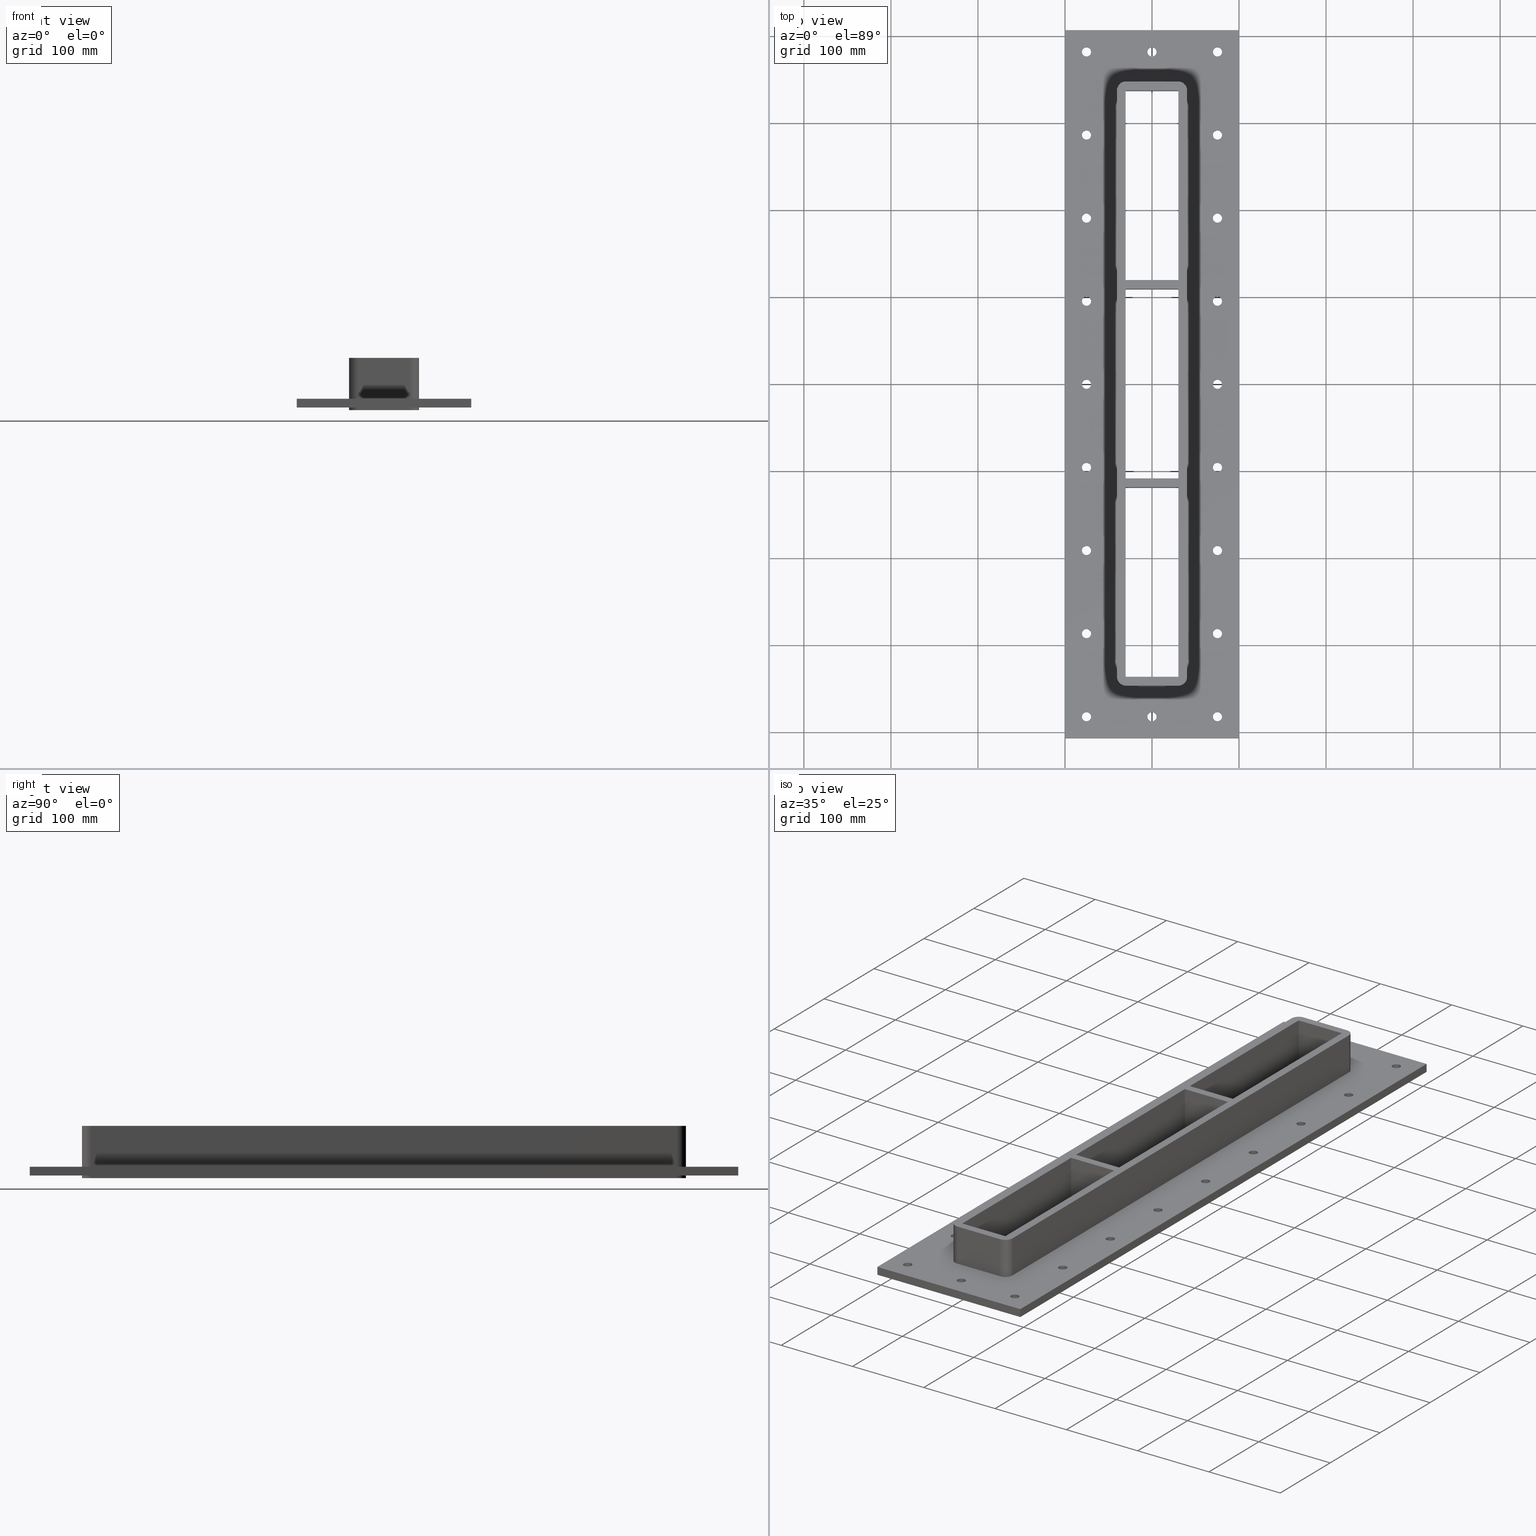
[diagram: canonical four-view strip — front | top / right | iso, engineering-drawing reading convention]
A machine part, canonical four-view strip (front | top / right | iso — engineering-drawing reading convention). The complete STEP part file that produces these views, byte-faithful:
ISO-10303-21;
HEADER;
/****************************************************************
 * Generated by software with PDElib inside                    *
 * PDElib Version v51a, created Wed 11/30/2011                  *
 * ITI Transcendata (http://www.transcendata.com/)              *
 ****************************************************************/
FILE_DESCRIPTION((''),'2;1');
FILE_NAME('C:\\Users\\se-milkar\\Desktop\\SFHM GENERATOR\\File dump\\SFHM5+5+5X1.stp','2017-01-17T17:24:56',(''),(''),'Autodesk Inventor 2013','Autodesk Inventor 2013','');
FILE_SCHEMA(('AUTOMOTIVE_DESIGN { 1 0 10303 214 1 1 1 1 }'));
ENDSEC;
DATA;
#5=APPLICATION_CONTEXT('automotive design');
#6=APPLICATION_PROTOCOL_DEFINITION('International Standard','automotive_design',2001,#5);
#7=PRODUCT_CONTEXT('',#5,'mechanical');
#8=PRODUCT('RTD-FRAME GENERATOR SF-LABB','RTD-FRAME GENERATOR SF-LABB',$,(#7));
#9=PRODUCT_RELATED_PRODUCT_CATEGORY('part',$,(#8));
#10=PRODUCT_DEFINITION_FORMATION('',$,#8);
#11=PRODUCT_DEFINITION_CONTEXT('part definition',#5,'design');
#12=PRODUCT_DEFINITION('',$,#10,#11);
#18=(NAMED_UNIT(*)PLANE_ANGLE_UNIT()SI_UNIT($,.RADIAN.));
#19=DIMENSIONAL_EXPONENTS(0.0,0.0,0.0,0.0,0.0,0.0,0.0);
#20=PLANE_ANGLE_MEASURE_WITH_UNIT(PLANE_ANGLE_MEASURE(0.0174532925),#18);
#24=(CONVERSION_BASED_UNIT('DEGREE',#20)NAMED_UNIT(#19)PLANE_ANGLE_UNIT());
#28=(NAMED_UNIT(*)SI_UNIT($,.STERADIAN.)SOLID_ANGLE_UNIT());
#32=(LENGTH_UNIT()NAMED_UNIT(*)SI_UNIT(.MILLI.,.METRE.));
#34=UNCERTAINTY_MEASURE_WITH_UNIT(LENGTH_MEASURE(0.01),#32,'DISTANCE_ACCURACY_VALUE','');
#36=(GEOMETRIC_REPRESENTATION_CONTEXT(3)GLOBAL_UNCERTAINTY_ASSIGNED_CONTEXT((#34))GLOBAL_UNIT_ASSIGNED_CONTEXT((#24,#28,#32))REPRESENTATION_CONTEXT('None','None'));
#37=AXIS2_PLACEMENT_3D('',#38,#39,#40);
#38=CARTESIAN_POINT('',(0.0,0.0,0.0));
#39=DIRECTION('',(0.0,0.0,1.0));
#40=DIRECTION('',(1.0,0.0,0.0));
#41=SHAPE_REPRESENTATION('',(#37),#36);
#42=PRODUCT_DEFINITION_SHAPE('','',#12);
#43=SHAPE_DEFINITION_REPRESENTATION(#42,#41);
#49=(NAMED_UNIT(*)PLANE_ANGLE_UNIT()SI_UNIT($,.RADIAN.));
#50=DIMENSIONAL_EXPONENTS(0.0,0.0,0.0,0.0,0.0,0.0,0.0);
#51=PLANE_ANGLE_MEASURE_WITH_UNIT(PLANE_ANGLE_MEASURE(0.0174532925),#49);
#55=(CONVERSION_BASED_UNIT('DEGREE',#51)NAMED_UNIT(#50)PLANE_ANGLE_UNIT());
#59=(NAMED_UNIT(*)SI_UNIT($,.STERADIAN.)SOLID_ANGLE_UNIT());
#63=(LENGTH_UNIT()NAMED_UNIT(*)SI_UNIT(.MILLI.,.METRE.));
#65=UNCERTAINTY_MEASURE_WITH_UNIT(LENGTH_MEASURE(0.000001),#63,'DISTANCE_ACCURACY_VALUE','');
#67=(GEOMETRIC_REPRESENTATION_CONTEXT(3)GLOBAL_UNCERTAINTY_ASSIGNED_CONTEXT((#65))GLOBAL_UNIT_ASSIGNED_CONTEXT((#55,#59,#63))REPRESENTATION_CONTEXT('','3D'));
#68=CARTESIAN_POINT('',(8.881784E-014,-382.0,-857.47382469652212));
#69=DIRECTION('',(0.0,0.0,1.0));
#70=DIRECTION('',(1.0,0.0,0.0));
#71=AXIS2_PLACEMENT_3D('',#68,#69,#70);
#72=CYLINDRICAL_SURFACE('',#71,5.25);
#73=CARTESIAN_POINT('',(-5.249999999999915,-382.0,-27.000000000000028));
#74=VERTEX_POINT('',#73);
#75=CARTESIAN_POINT('',(8.881784E-014,-382.0,-27.000000000000028));
#76=DIRECTION('',(0.0,0.0,1.0));
#77=DIRECTION('',(1.0,0.0,0.0));
#78=AXIS2_PLACEMENT_3D('',#75,#76,#77);
#79=CIRCLE('',#78,5.25);
#80=EDGE_CURVE('',#74,#74,#79,.T.);
#81=ORIENTED_EDGE('',*,*,#80,.F.);
#82=EDGE_LOOP('',(#81));
#83=FACE_OUTER_BOUND('',#82,.T.);
#84=CARTESIAN_POINT('',(5.250000000000084,-382.0,-16.999999999999996));
#85=VERTEX_POINT('',#84);
#86=CARTESIAN_POINT('',(8.881784E-014,-382.0,-17.000000000000028));
#87=DIRECTION('',(0.0,0.0,-1.0));
#88=DIRECTION('',(1.0,0.0,0.0));
#89=AXIS2_PLACEMENT_3D('',#86,#87,#88);
#90=CIRCLE('',#89,5.25);
#91=EDGE_CURVE('',#85,#85,#90,.T.);
#92=ORIENTED_EDGE('',*,*,#91,.F.);
#93=EDGE_LOOP('',(#92));
#94=FACE_BOUND('',#93,.T.);
#95=ADVANCED_FACE('',(#83,#94),#72,.F.);
#96=CARTESIAN_POINT('',(-2.664535E-014,382.0,-857.47382469652212));
#97=DIRECTION('',(0.0,0.0,1.0));
#98=DIRECTION('',(1.0,0.0,0.0));
#99=AXIS2_PLACEMENT_3D('',#96,#97,#98);
#100=CYLINDRICAL_SURFACE('',#99,5.25);
#101=CARTESIAN_POINT('',(-5.250000000000021,382.0,-27.000000000000028));
#102=VERTEX_POINT('',#101);
#103=CARTESIAN_POINT('',(-2.664535E-014,382.0,-27.000000000000028));
#104=DIRECTION('',(0.0,0.0,1.0));
#105=DIRECTION('',(1.0,0.0,0.0));
#106=AXIS2_PLACEMENT_3D('',#103,#104,#105);
#107=CIRCLE('',#106,5.25);
#108=EDGE_CURVE('',#102,#102,#107,.T.);
#109=ORIENTED_EDGE('',*,*,#108,.F.);
#110=EDGE_LOOP('',(#109));
#111=FACE_OUTER_BOUND('',#110,.T.);
#112=CARTESIAN_POINT('',(5.249999999999977,382.0,-16.999999999999996));
#113=VERTEX_POINT('',#112);
#114=CARTESIAN_POINT('',(-2.664535E-014,382.0,-17.000000000000028));
#115=DIRECTION('',(0.0,0.0,-1.0));
#116=DIRECTION('',(1.0,0.0,0.0));
#117=AXIS2_PLACEMENT_3D('',#114,#115,#116);
#118=CIRCLE('',#117,5.25);
#119=EDGE_CURVE('',#113,#113,#118,.T.);
#120=ORIENTED_EDGE('',*,*,#119,.F.);
#121=EDGE_LOOP('',(#120));
#122=FACE_BOUND('',#121,.T.);
#123=ADVANCED_FACE('',(#111,#122),#100,.F.);
#124=CARTESIAN_POINT('',(75.250000000000071,-286.50000000000011,-857.47382469652212));
#125=DIRECTION('',(0.0,0.0,1.0));
#126=DIRECTION('',(1.0,0.0,0.0));
#127=AXIS2_PLACEMENT_3D('',#124,#125,#126);
#128=CYLINDRICAL_SURFACE('',#127,5.25);
#129=CARTESIAN_POINT('',(70.000000000000057,-286.50000000000011,-27.000000000000028));
#130=VERTEX_POINT('',#129);
#131=CARTESIAN_POINT('',(75.250000000000071,-286.50000000000011,-27.000000000000028));
#132=DIRECTION('',(0.0,0.0,1.0));
#133=DIRECTION('',(1.0,0.0,0.0));
#134=AXIS2_PLACEMENT_3D('',#131,#132,#133);
#135=CIRCLE('',#134,5.25);
#136=EDGE_CURVE('',#130,#130,#135,.T.);
#137=ORIENTED_EDGE('',*,*,#136,.F.);
#138=EDGE_LOOP('',(#137));
#139=FACE_OUTER_BOUND('',#138,.T.);
#140=CARTESIAN_POINT('',(80.500000000000057,-286.50000000000011,-16.999999999999996));
#141=VERTEX_POINT('',#140);
#142=CARTESIAN_POINT('',(75.250000000000071,-286.50000000000011,-17.000000000000028));
#143=DIRECTION('',(0.0,0.0,-1.0));
#144=DIRECTION('',(1.0,0.0,0.0));
#145=AXIS2_PLACEMENT_3D('',#142,#143,#144);
#146=CIRCLE('',#145,5.25);
#147=EDGE_CURVE('',#141,#141,#146,.T.);
#148=ORIENTED_EDGE('',*,*,#147,.F.);
#149=EDGE_LOOP('',(#148));
#150=FACE_BOUND('',#149,.T.);
#151=ADVANCED_FACE('',(#139,#150),#128,.F.);
#152=CARTESIAN_POINT('',(75.250000000000043,-190.99999999999997,-857.47382469652212));
#153=DIRECTION('',(0.0,0.0,1.0));
#154=DIRECTION('',(1.0,0.0,0.0));
#155=AXIS2_PLACEMENT_3D('',#152,#153,#154);
#156=CYLINDRICAL_SURFACE('',#155,5.25);
#157=CARTESIAN_POINT('',(70.000000000000043,-190.99999999999997,-27.000000000000028));
#158=VERTEX_POINT('',#157);
#159=CARTESIAN_POINT('',(75.250000000000043,-190.99999999999997,-27.000000000000028));
#160=DIRECTION('',(0.0,0.0,1.0));
#161=DIRECTION('',(1.0,0.0,0.0));
#162=AXIS2_PLACEMENT_3D('',#159,#160,#161);
#163=CIRCLE('',#162,5.25);
#164=EDGE_CURVE('',#158,#158,#163,.T.);
#165=ORIENTED_EDGE('',*,*,#164,.F.);
#166=EDGE_LOOP('',(#165));
#167=FACE_OUTER_BOUND('',#166,.T.);
#168=CARTESIAN_POINT('',(80.500000000000043,-190.99999999999997,-16.999999999999996));
#169=VERTEX_POINT('',#168);
#170=CARTESIAN_POINT('',(75.250000000000043,-190.99999999999997,-17.000000000000028));
#171=DIRECTION('',(0.0,0.0,-1.0));
#172=DIRECTION('',(1.0,0.0,0.0));
#173=AXIS2_PLACEMENT_3D('',#170,#171,#172);
#174=CIRCLE('',#173,5.25);
#175=EDGE_CURVE('',#169,#169,#174,.T.);
#176=ORIENTED_EDGE('',*,*,#175,.F.);
#177=EDGE_LOOP('',(#176));
#178=FACE_BOUND('',#177,.T.);
#179=ADVANCED_FACE('',(#167,#178),#156,.F.);
#180=CARTESIAN_POINT('',(75.250000000000043,-95.5,-857.47382469652212));
#181=DIRECTION('',(0.0,0.0,1.0));
#182=DIRECTION('',(1.0,0.0,0.0));
#183=AXIS2_PLACEMENT_3D('',#180,#181,#182);
#184=CYLINDRICAL_SURFACE('',#183,5.25);
#185=CARTESIAN_POINT('',(70.000000000000028,-95.5,-27.000000000000028));
#186=VERTEX_POINT('',#185);
#187=CARTESIAN_POINT('',(75.250000000000043,-95.5,-27.000000000000028));
#188=DIRECTION('',(0.0,0.0,1.0));
#189=DIRECTION('',(1.0,0.0,0.0));
#190=AXIS2_PLACEMENT_3D('',#187,#188,#189);
#191=CIRCLE('',#190,5.25);
#192=EDGE_CURVE('',#186,#186,#191,.T.);
#193=ORIENTED_EDGE('',*,*,#192,.F.);
#194=EDGE_LOOP('',(#193));
#195=FACE_OUTER_BOUND('',#194,.T.);
#196=CARTESIAN_POINT('',(80.500000000000028,-95.5,-16.999999999999996));
#197=VERTEX_POINT('',#196);
#198=CARTESIAN_POINT('',(75.250000000000043,-95.5,-17.000000000000028));
#199=DIRECTION('',(0.0,0.0,-1.0));
#200=DIRECTION('',(1.0,0.0,0.0));
#201=AXIS2_PLACEMENT_3D('',#198,#199,#200);
#202=CIRCLE('',#201,5.25);
#203=EDGE_CURVE('',#197,#197,#202,.T.);
#204=ORIENTED_EDGE('',*,*,#203,.F.);
#205=EDGE_LOOP('',(#204));
#206=FACE_BOUND('',#205,.T.);
#207=ADVANCED_FACE('',(#195,#206),#184,.F.);
#208=CARTESIAN_POINT('',(75.250000000000028,0.0,-857.47382469652212));
#209=DIRECTION('',(0.0,0.0,1.0));
#210=DIRECTION('',(1.0,0.0,0.0));
#211=AXIS2_PLACEMENT_3D('',#208,#209,#210);
#212=CYLINDRICAL_SURFACE('',#211,5.25);
#213=CARTESIAN_POINT('',(70.000000000000014,0.0,-27.000000000000028));
#214=VERTEX_POINT('',#213);
#215=CARTESIAN_POINT('',(75.250000000000028,0.0,-27.000000000000028));
#216=DIRECTION('',(0.0,0.0,1.0));
#217=DIRECTION('',(1.0,0.0,0.0));
#218=AXIS2_PLACEMENT_3D('',#215,#216,#217);
#219=CIRCLE('',#218,5.25);
#220=EDGE_CURVE('',#214,#214,#219,.T.);
#221=ORIENTED_EDGE('',*,*,#220,.F.);
#222=EDGE_LOOP('',(#221));
#223=FACE_OUTER_BOUND('',#222,.T.);
#224=CARTESIAN_POINT('',(80.5,0.0,-16.999999999999996));
#225=VERTEX_POINT('',#224);
#226=CARTESIAN_POINT('',(75.250000000000028,0.0,-17.000000000000028));
#227=DIRECTION('',(0.0,0.0,-1.0));
#228=DIRECTION('',(1.0,0.0,0.0));
#229=AXIS2_PLACEMENT_3D('',#226,#227,#228);
#230=CIRCLE('',#229,5.25);
#231=EDGE_CURVE('',#225,#225,#230,.T.);
#232=ORIENTED_EDGE('',*,*,#231,.F.);
#233=EDGE_LOOP('',(#232));
#234=FACE_BOUND('',#233,.T.);
#235=ADVANCED_FACE('',(#223,#234),#212,.F.);
#236=CARTESIAN_POINT('',(75.25,95.5,-857.47382469652212));
#237=DIRECTION('',(0.0,0.0,1.0));
#238=DIRECTION('',(1.0,0.0,0.0));
#239=AXIS2_PLACEMENT_3D('',#236,#237,#238);
#240=CYLINDRICAL_SURFACE('',#239,5.25);
#241=CARTESIAN_POINT('',(70.0,95.5,-27.000000000000028));
#242=VERTEX_POINT('',#241);
#243=CARTESIAN_POINT('',(75.25,95.5,-27.000000000000028));
#244=DIRECTION('',(0.0,0.0,1.0));
#245=DIRECTION('',(1.0,0.0,0.0));
#246=AXIS2_PLACEMENT_3D('',#243,#244,#245);
#247=CIRCLE('',#246,5.25);
#248=EDGE_CURVE('',#242,#242,#247,.T.);
#249=ORIENTED_EDGE('',*,*,#248,.F.);
#250=EDGE_LOOP('',(#249));
#251=FACE_OUTER_BOUND('',#250,.T.);
#252=CARTESIAN_POINT('',(80.5,95.5,-16.999999999999996));
#253=VERTEX_POINT('',#252);
#254=CARTESIAN_POINT('',(75.25,95.5,-17.000000000000028));
#255=DIRECTION('',(0.0,0.0,-1.0));
#256=DIRECTION('',(1.0,0.0,0.0));
#257=AXIS2_PLACEMENT_3D('',#254,#255,#256);
#258=CIRCLE('',#257,5.25);
#259=EDGE_CURVE('',#253,#253,#258,.T.);
#260=ORIENTED_EDGE('',*,*,#259,.F.);
#261=EDGE_LOOP('',(#260));
#262=FACE_BOUND('',#261,.T.);
#263=ADVANCED_FACE('',(#251,#262),#240,.F.);
#264=CARTESIAN_POINT('',(75.25,191.0,-857.47382469652212));
#265=DIRECTION('',(0.0,0.0,1.0));
#266=DIRECTION('',(1.0,0.0,0.0));
#267=AXIS2_PLACEMENT_3D('',#264,#265,#266);
#268=CYLINDRICAL_SURFACE('',#267,5.25);
#269=CARTESIAN_POINT('',(69.999999999999986,191.0,-27.000000000000028));
#270=VERTEX_POINT('',#269);
#271=CARTESIAN_POINT('',(75.25,191.0,-27.000000000000028));
#272=DIRECTION('',(0.0,0.0,1.0));
#273=DIRECTION('',(1.0,0.0,0.0));
#274=AXIS2_PLACEMENT_3D('',#271,#272,#273);
#275=CIRCLE('',#274,5.25);
#276=EDGE_CURVE('',#270,#270,#275,.T.);
#277=ORIENTED_EDGE('',*,*,#276,.F.);
#278=EDGE_LOOP('',(#277));
#279=FACE_OUTER_BOUND('',#278,.T.);
#280=CARTESIAN_POINT('',(80.499999999999986,191.0,-16.999999999999996));
#281=VERTEX_POINT('',#280);
#282=CARTESIAN_POINT('',(75.25,191.0,-17.000000000000028));
#283=DIRECTION('',(0.0,0.0,-1.0));
#284=DIRECTION('',(1.0,0.0,0.0));
#285=AXIS2_PLACEMENT_3D('',#282,#283,#284);
#286=CIRCLE('',#285,5.25);
#287=EDGE_CURVE('',#281,#281,#286,.T.);
#288=ORIENTED_EDGE('',*,*,#287,.F.);
#289=EDGE_LOOP('',(#288));
#290=FACE_BOUND('',#289,.T.);
#291=ADVANCED_FACE('',(#279,#290),#268,.F.);
#292=CARTESIAN_POINT('',(75.249999999999972,286.5,-857.47382469652212));
#293=DIRECTION('',(0.0,0.0,1.0));
#294=DIRECTION('',(1.0,0.0,0.0));
#295=AXIS2_PLACEMENT_3D('',#292,#293,#294);
#296=CYLINDRICAL_SURFACE('',#295,5.25);
#297=CARTESIAN_POINT('',(69.999999999999972,286.5,-27.000000000000028));
#298=VERTEX_POINT('',#297);
#299=CARTESIAN_POINT('',(75.249999999999972,286.5,-27.000000000000028));
#300=DIRECTION('',(0.0,0.0,1.0));
#301=DIRECTION('',(1.0,0.0,0.0));
#302=AXIS2_PLACEMENT_3D('',#299,#300,#301);
#303=CIRCLE('',#302,5.25);
#304=EDGE_CURVE('',#298,#298,#303,.T.);
#305=ORIENTED_EDGE('',*,*,#304,.F.);
#306=EDGE_LOOP('',(#305));
#307=FACE_OUTER_BOUND('',#306,.T.);
#308=CARTESIAN_POINT('',(80.499999999999972,286.5,-16.999999999999996));
#309=VERTEX_POINT('',#308);
#310=CARTESIAN_POINT('',(75.249999999999972,286.5,-17.000000000000028));
#311=DIRECTION('',(0.0,0.0,-1.0));
#312=DIRECTION('',(1.0,0.0,0.0));
#313=AXIS2_PLACEMENT_3D('',#310,#311,#312);
#314=CIRCLE('',#313,5.25);
#315=EDGE_CURVE('',#309,#309,#314,.T.);
#316=ORIENTED_EDGE('',*,*,#315,.F.);
#317=EDGE_LOOP('',(#316));
#318=FACE_BOUND('',#317,.T.);
#319=ADVANCED_FACE('',(#307,#318),#296,.F.);
#320=CARTESIAN_POINT('',(-75.25,286.50000000000011,-857.47382469652212));
#321=DIRECTION('',(0.0,0.0,1.0));
#322=DIRECTION('',(1.0,0.0,0.0));
#323=AXIS2_PLACEMENT_3D('',#320,#321,#322);
#324=CYLINDRICAL_SURFACE('',#323,5.25);
#325=CARTESIAN_POINT('',(-80.5,286.50000000000011,-27.000000000000028));
#326=VERTEX_POINT('',#325);
#327=CARTESIAN_POINT('',(-75.25,286.50000000000011,-27.000000000000028));
#328=DIRECTION('',(0.0,0.0,1.0));
#329=DIRECTION('',(1.0,0.0,0.0));
#330=AXIS2_PLACEMENT_3D('',#327,#328,#329);
#331=CIRCLE('',#330,5.25);
#332=EDGE_CURVE('',#326,#326,#331,.T.);
#333=ORIENTED_EDGE('',*,*,#332,.F.);
#334=EDGE_LOOP('',(#333));
#335=FACE_OUTER_BOUND('',#334,.T.);
#336=CARTESIAN_POINT('',(-70.0,286.50000000000011,-16.999999999999996));
#337=VERTEX_POINT('',#336);
#338=CARTESIAN_POINT('',(-75.25,286.50000000000011,-17.000000000000028));
#339=DIRECTION('',(0.0,0.0,-1.0));
#340=DIRECTION('',(1.0,0.0,0.0));
#341=AXIS2_PLACEMENT_3D('',#338,#339,#340);
#342=CIRCLE('',#341,5.25);
#343=EDGE_CURVE('',#337,#337,#342,.T.);
#344=ORIENTED_EDGE('',*,*,#343,.F.);
#345=EDGE_LOOP('',(#344));
#346=FACE_BOUND('',#345,.T.);
#347=ADVANCED_FACE('',(#335,#346),#324,.F.);
#348=CARTESIAN_POINT('',(-75.25,190.99999999999997,-857.47382469652212));
#349=DIRECTION('',(0.0,0.0,1.0));
#350=DIRECTION('',(1.0,0.0,0.0));
#351=AXIS2_PLACEMENT_3D('',#348,#349,#350);
#352=CYLINDRICAL_SURFACE('',#351,5.25);
#353=CARTESIAN_POINT('',(-80.5,190.99999999999997,-27.000000000000028));
#354=VERTEX_POINT('',#353);
#355=CARTESIAN_POINT('',(-75.25,190.99999999999997,-27.000000000000028));
#356=DIRECTION('',(0.0,0.0,1.0));
#357=DIRECTION('',(1.0,0.0,0.0));
#358=AXIS2_PLACEMENT_3D('',#355,#356,#357);
#359=CIRCLE('',#358,5.25);
#360=EDGE_CURVE('',#354,#354,#359,.T.);
#361=ORIENTED_EDGE('',*,*,#360,.F.);
#362=EDGE_LOOP('',(#361));
#363=FACE_OUTER_BOUND('',#362,.T.);
#364=CARTESIAN_POINT('',(-69.999999999999986,190.99999999999997,-16.999999999999996));
#365=VERTEX_POINT('',#364);
#366=CARTESIAN_POINT('',(-75.25,190.99999999999997,-17.000000000000028));
#367=DIRECTION('',(0.0,0.0,-1.0));
#368=DIRECTION('',(1.0,0.0,0.0));
#369=AXIS2_PLACEMENT_3D('',#366,#367,#368);
#370=CIRCLE('',#369,5.25);
#371=EDGE_CURVE('',#365,#365,#370,.T.);
#372=ORIENTED_EDGE('',*,*,#371,.F.);
#373=EDGE_LOOP('',(#372));
#374=FACE_BOUND('',#373,.T.);
#375=ADVANCED_FACE('',(#363,#374),#352,.F.);
#376=CARTESIAN_POINT('',(-75.249999999999986,95.5,-857.47382469652212));
#377=DIRECTION('',(0.0,0.0,1.0));
#378=DIRECTION('',(1.0,0.0,0.0));
#379=AXIS2_PLACEMENT_3D('',#376,#377,#378);
#380=CYLINDRICAL_SURFACE('',#379,5.25);
#381=CARTESIAN_POINT('',(-80.499999999999986,95.5,-27.000000000000028));
#382=VERTEX_POINT('',#381);
#383=CARTESIAN_POINT('',(-75.249999999999986,95.5,-27.000000000000028));
#384=DIRECTION('',(0.0,0.0,1.0));
#385=DIRECTION('',(1.0,0.0,0.0));
#386=AXIS2_PLACEMENT_3D('',#383,#384,#385);
#387=CIRCLE('',#386,5.25);
#388=EDGE_CURVE('',#382,#382,#387,.T.);
#389=ORIENTED_EDGE('',*,*,#388,.F.);
#390=EDGE_LOOP('',(#389));
#391=FACE_OUTER_BOUND('',#390,.T.);
#392=CARTESIAN_POINT('',(-69.999999999999986,95.5,-16.999999999999996));
#393=VERTEX_POINT('',#392);
#394=CARTESIAN_POINT('',(-75.249999999999986,95.5,-17.000000000000028));
#395=DIRECTION('',(0.0,0.0,-1.0));
#396=DIRECTION('',(1.0,0.0,0.0));
#397=AXIS2_PLACEMENT_3D('',#394,#395,#396);
#398=CIRCLE('',#397,5.25);
#399=EDGE_CURVE('',#393,#393,#398,.T.);
#400=ORIENTED_EDGE('',*,*,#399,.F.);
#401=EDGE_LOOP('',(#400));
#402=FACE_BOUND('',#401,.T.);
#403=ADVANCED_FACE('',(#391,#402),#380,.F.);
#404=CARTESIAN_POINT('',(-75.249999999999972,0.0,-857.47382469652212));
#405=DIRECTION('',(0.0,0.0,1.0));
#406=DIRECTION('',(1.0,0.0,0.0));
#407=AXIS2_PLACEMENT_3D('',#404,#405,#406);
#408=CYLINDRICAL_SURFACE('',#407,5.25);
#409=CARTESIAN_POINT('',(-80.499999999999972,0.0,-27.000000000000028));
#410=VERTEX_POINT('',#409);
#411=CARTESIAN_POINT('',(-75.249999999999972,0.0,-27.000000000000028));
#412=DIRECTION('',(0.0,0.0,1.0));
#413=DIRECTION('',(1.0,0.0,0.0));
#414=AXIS2_PLACEMENT_3D('',#411,#412,#413);
#415=CIRCLE('',#414,5.25);
#416=EDGE_CURVE('',#410,#410,#415,.T.);
#417=ORIENTED_EDGE('',*,*,#416,.F.);
#418=EDGE_LOOP('',(#417));
#419=FACE_OUTER_BOUND('',#418,.T.);
#420=CARTESIAN_POINT('',(-69.999999999999972,0.0,-16.999999999999996));
#421=VERTEX_POINT('',#420);
#422=CARTESIAN_POINT('',(-75.249999999999972,0.0,-17.000000000000028));
#423=DIRECTION('',(0.0,0.0,-1.0));
#424=DIRECTION('',(1.0,0.0,0.0));
#425=AXIS2_PLACEMENT_3D('',#422,#423,#424);
#426=CIRCLE('',#425,5.25);
#427=EDGE_CURVE('',#421,#421,#426,.T.);
#428=ORIENTED_EDGE('',*,*,#427,.F.);
#429=EDGE_LOOP('',(#428));
#430=FACE_BOUND('',#429,.T.);
#431=ADVANCED_FACE('',(#419,#430),#408,.F.);
#432=CARTESIAN_POINT('',(-75.249999999999957,-95.5,-857.47382469652212));
#433=DIRECTION('',(0.0,0.0,1.0));
#434=DIRECTION('',(1.0,0.0,0.0));
#435=AXIS2_PLACEMENT_3D('',#432,#433,#434);
#436=CYLINDRICAL_SURFACE('',#435,5.25);
#437=CARTESIAN_POINT('',(-80.499999999999957,-95.5,-27.000000000000028));
#438=VERTEX_POINT('',#437);
#439=CARTESIAN_POINT('',(-75.249999999999957,-95.5,-27.000000000000028));
#440=DIRECTION('',(0.0,0.0,1.0));
#441=DIRECTION('',(1.0,0.0,0.0));
#442=AXIS2_PLACEMENT_3D('',#439,#440,#441);
#443=CIRCLE('',#442,5.25);
#444=EDGE_CURVE('',#438,#438,#443,.T.);
#445=ORIENTED_EDGE('',*,*,#444,.F.);
#446=EDGE_LOOP('',(#445));
#447=FACE_OUTER_BOUND('',#446,.T.);
#448=CARTESIAN_POINT('',(-69.999999999999957,-95.5,-16.999999999999996));
#449=VERTEX_POINT('',#448);
#450=CARTESIAN_POINT('',(-75.249999999999957,-95.5,-17.000000000000028));
#451=DIRECTION('',(0.0,0.0,-1.0));
#452=DIRECTION('',(1.0,0.0,0.0));
#453=AXIS2_PLACEMENT_3D('',#450,#451,#452);
#454=CIRCLE('',#453,5.25);
#455=EDGE_CURVE('',#449,#449,#454,.T.);
#456=ORIENTED_EDGE('',*,*,#455,.F.);
#457=EDGE_LOOP('',(#456));
#458=FACE_BOUND('',#457,.T.);
#459=ADVANCED_FACE('',(#447,#458),#436,.F.);
#460=CARTESIAN_POINT('',(-75.249999999999943,-191.0,-857.47382469652212));
#461=DIRECTION('',(0.0,0.0,1.0));
#462=DIRECTION('',(1.0,0.0,0.0));
#463=AXIS2_PLACEMENT_3D('',#460,#461,#462);
#464=CYLINDRICAL_SURFACE('',#463,5.25);
#465=CARTESIAN_POINT('',(-80.499999999999957,-191.0,-27.000000000000028));
#466=VERTEX_POINT('',#465);
#467=CARTESIAN_POINT('',(-75.249999999999943,-191.0,-27.000000000000028));
#468=DIRECTION('',(0.0,0.0,1.0));
#469=DIRECTION('',(1.0,0.0,0.0));
#470=AXIS2_PLACEMENT_3D('',#467,#468,#469);
#471=CIRCLE('',#470,5.25);
#472=EDGE_CURVE('',#466,#466,#471,.T.);
#473=ORIENTED_EDGE('',*,*,#472,.F.);
#474=EDGE_LOOP('',(#473));
#475=FACE_OUTER_BOUND('',#474,.T.);
#476=CARTESIAN_POINT('',(-69.999999999999943,-191.0,-16.999999999999996));
#477=VERTEX_POINT('',#476);
#478=CARTESIAN_POINT('',(-75.249999999999943,-191.0,-17.000000000000028));
#479=DIRECTION('',(0.0,0.0,-1.0));
#480=DIRECTION('',(1.0,0.0,0.0));
#481=AXIS2_PLACEMENT_3D('',#478,#479,#480);
#482=CIRCLE('',#481,5.25);
#483=EDGE_CURVE('',#477,#477,#482,.T.);
#484=ORIENTED_EDGE('',*,*,#483,.F.);
#485=EDGE_LOOP('',(#484));
#486=FACE_BOUND('',#485,.T.);
#487=ADVANCED_FACE('',(#475,#486),#464,.F.);
#488=CARTESIAN_POINT('',(-75.249999999999929,-286.5,-857.47382469652212));
#489=DIRECTION('',(0.0,0.0,1.0));
#490=DIRECTION('',(1.0,0.0,0.0));
#491=AXIS2_PLACEMENT_3D('',#488,#489,#490);
#492=CYLINDRICAL_SURFACE('',#491,5.25);
#493=CARTESIAN_POINT('',(-80.499999999999943,-286.5,-27.000000000000028));
#494=VERTEX_POINT('',#493);
#495=CARTESIAN_POINT('',(-75.249999999999929,-286.5,-27.000000000000028));
#496=DIRECTION('',(0.0,0.0,1.0));
#497=DIRECTION('',(1.0,0.0,0.0));
#498=AXIS2_PLACEMENT_3D('',#495,#496,#497);
#499=CIRCLE('',#498,5.25);
#500=EDGE_CURVE('',#494,#494,#499,.T.);
#501=ORIENTED_EDGE('',*,*,#500,.F.);
#502=EDGE_LOOP('',(#501));
#503=FACE_OUTER_BOUND('',#502,.T.);
#504=CARTESIAN_POINT('',(-69.999999999999929,-286.5,-16.999999999999996));
#505=VERTEX_POINT('',#504);
#506=CARTESIAN_POINT('',(-75.249999999999929,-286.5,-17.000000000000028));
#507=DIRECTION('',(0.0,0.0,-1.0));
#508=DIRECTION('',(1.0,0.0,0.0));
#509=AXIS2_PLACEMENT_3D('',#506,#507,#508);
#510=CIRCLE('',#509,5.25);
#511=EDGE_CURVE('',#505,#505,#510,.T.);
#512=ORIENTED_EDGE('',*,*,#511,.F.);
#513=EDGE_LOOP('',(#512));
#514=FACE_BOUND('',#513,.T.);
#515=ADVANCED_FACE('',(#503,#514),#492,.F.);
#516=CARTESIAN_POINT('',(-75.250000000000028,382.0,-857.47382469652212));
#517=DIRECTION('',(0.0,0.0,1.0));
#518=DIRECTION('',(1.0,0.0,0.0));
#519=AXIS2_PLACEMENT_3D('',#516,#517,#518);
#520=CYLINDRICAL_SURFACE('',#519,5.25);
#521=CARTESIAN_POINT('',(-80.500000000000028,382.0,-27.000000000000028));
#522=VERTEX_POINT('',#521);
#523=CARTESIAN_POINT('',(-75.250000000000028,382.0,-27.000000000000028));
#524=DIRECTION('',(0.0,0.0,1.0));
#525=DIRECTION('',(1.0,0.0,0.0));
#526=AXIS2_PLACEMENT_3D('',#523,#524,#525);
#527=CIRCLE('',#526,5.25);
#528=EDGE_CURVE('',#522,#522,#527,.T.);
#529=ORIENTED_EDGE('',*,*,#528,.F.);
#530=EDGE_LOOP('',(#529));
#531=FACE_OUTER_BOUND('',#530,.T.);
#532=CARTESIAN_POINT('',(-70.000000000000028,382.0,-16.999999999999996));
#533=VERTEX_POINT('',#532);
#534=CARTESIAN_POINT('',(-75.250000000000028,382.0,-17.000000000000028));
#535=DIRECTION('',(0.0,0.0,-1.0));
#536=DIRECTION('',(1.0,0.0,0.0));
#537=AXIS2_PLACEMENT_3D('',#534,#535,#536);
#538=CIRCLE('',#537,5.25);
#539=EDGE_CURVE('',#533,#533,#538,.T.);
#540=ORIENTED_EDGE('',*,*,#539,.F.);
#541=EDGE_LOOP('',(#540));
#542=FACE_BOUND('',#541,.T.);
#543=ADVANCED_FACE('',(#531,#542),#520,.F.);
#544=CARTESIAN_POINT('',(75.249999999999957,382.0,-857.47382469652212));
#545=DIRECTION('',(0.0,0.0,1.0));
#546=DIRECTION('',(1.0,0.0,0.0));
#547=AXIS2_PLACEMENT_3D('',#544,#545,#546);
#548=CYLINDRICAL_SURFACE('',#547,5.25);
#549=CARTESIAN_POINT('',(69.999999999999957,382.0,-27.000000000000028));
#550=VERTEX_POINT('',#549);
#551=CARTESIAN_POINT('',(75.249999999999957,382.0,-27.000000000000028));
#552=DIRECTION('',(0.0,0.0,1.0));
#553=DIRECTION('',(1.0,0.0,0.0));
#554=AXIS2_PLACEMENT_3D('',#551,#552,#553);
#555=CIRCLE('',#554,5.25);
#556=EDGE_CURVE('',#550,#550,#555,.T.);
#557=ORIENTED_EDGE('',*,*,#556,.F.);
#558=EDGE_LOOP('',(#557));
#559=FACE_OUTER_BOUND('',#558,.T.);
#560=CARTESIAN_POINT('',(80.499999999999957,382.0,-16.999999999999996));
#561=VERTEX_POINT('',#560);
#562=CARTESIAN_POINT('',(75.249999999999957,382.0,-17.000000000000028));
#563=DIRECTION('',(0.0,0.0,-1.0));
#564=DIRECTION('',(1.0,0.0,0.0));
#565=AXIS2_PLACEMENT_3D('',#562,#563,#564);
#566=CIRCLE('',#565,5.25);
#567=EDGE_CURVE('',#561,#561,#566,.T.);
#568=ORIENTED_EDGE('',*,*,#567,.F.);
#569=EDGE_LOOP('',(#568));
#570=FACE_BOUND('',#569,.T.);
#571=ADVANCED_FACE('',(#559,#570),#548,.F.);
#572=CARTESIAN_POINT('',(75.250000000000085,-382.0,-857.47382469652212));
#573=DIRECTION('',(0.0,0.0,1.0));
#574=DIRECTION('',(1.0,0.0,0.0));
#575=AXIS2_PLACEMENT_3D('',#572,#573,#574);
#576=CYLINDRICAL_SURFACE('',#575,5.25);
#577=CARTESIAN_POINT('',(70.000000000000085,-382.0,-27.000000000000028));
#578=VERTEX_POINT('',#577);
#579=CARTESIAN_POINT('',(75.250000000000085,-382.0,-27.000000000000028));
#580=DIRECTION('',(0.0,0.0,1.0));
#581=DIRECTION('',(1.0,0.0,0.0));
#582=AXIS2_PLACEMENT_3D('',#579,#580,#581);
#583=CIRCLE('',#582,5.25);
#584=EDGE_CURVE('',#578,#578,#583,.T.);
#585=ORIENTED_EDGE('',*,*,#584,.F.);
#586=EDGE_LOOP('',(#585));
#587=FACE_OUTER_BOUND('',#586,.T.);
#588=CARTESIAN_POINT('',(80.500000000000085,-382.0,-16.999999999999996));
#589=VERTEX_POINT('',#588);
#590=CARTESIAN_POINT('',(75.250000000000085,-382.0,-17.000000000000028));
#591=DIRECTION('',(0.0,0.0,-1.0));
#592=DIRECTION('',(1.0,0.0,0.0));
#593=AXIS2_PLACEMENT_3D('',#590,#591,#592);
#594=CIRCLE('',#593,5.25);
#595=EDGE_CURVE('',#589,#589,#594,.T.);
#596=ORIENTED_EDGE('',*,*,#595,.F.);
#597=EDGE_LOOP('',(#596));
#598=FACE_BOUND('',#597,.T.);
#599=ADVANCED_FACE('',(#587,#598),#576,.F.);
#600=CARTESIAN_POINT('',(-75.249999999999929,-382.0,-857.47382469652212));
#601=DIRECTION('',(0.0,0.0,1.0));
#602=DIRECTION('',(1.0,0.0,0.0));
#603=AXIS2_PLACEMENT_3D('',#600,#601,#602);
#604=CYLINDRICAL_SURFACE('',#603,5.25);
#605=CARTESIAN_POINT('',(-80.499999999999915,-382.0,-27.000000000000028));
#606=VERTEX_POINT('',#605);
#607=CARTESIAN_POINT('',(-75.249999999999929,-382.0,-27.000000000000028));
#608=DIRECTION('',(0.0,0.0,1.0));
#609=DIRECTION('',(1.0,0.0,0.0));
#610=AXIS2_PLACEMENT_3D('',#607,#608,#609);
#611=CIRCLE('',#610,5.25);
#612=EDGE_CURVE('',#606,#606,#611,.T.);
#613=ORIENTED_EDGE('',*,*,#612,.F.);
#614=EDGE_LOOP('',(#613));
#615=FACE_OUTER_BOUND('',#614,.T.);
#616=CARTESIAN_POINT('',(-69.999999999999915,-382.0,-16.999999999999996));
#617=VERTEX_POINT('',#616);
#618=CARTESIAN_POINT('',(-75.249999999999929,-382.0,-17.000000000000028));
#619=DIRECTION('',(0.0,0.0,-1.0));
#620=DIRECTION('',(1.0,0.0,0.0));
#621=AXIS2_PLACEMENT_3D('',#618,#619,#620);
#622=CIRCLE('',#621,5.25);
#623=EDGE_CURVE('',#617,#617,#622,.T.);
#624=ORIENTED_EDGE('',*,*,#623,.F.);
#625=EDGE_LOOP('',(#624));
#626=FACE_BOUND('',#625,.T.);
#627=ADVANCED_FACE('',(#615,#626),#604,.F.);
#628=CARTESIAN_POINT('',(-100.25000000000006,407.0,-27.0));
#629=DIRECTION('',(-1.0,0.0,0.0));
#630=DIRECTION('',(0.0,-1.0,0.0));
#631=AXIS2_PLACEMENT_3D('',#628,#629,#630);
#632=PLANE('',#631);
#633=CARTESIAN_POINT('',(-100.24999999999993,-407.0,-27.0));
#634=VERTEX_POINT('',#633);
#635=CARTESIAN_POINT('',(-100.25000000000006,407.0,-27.0));
#636=VERTEX_POINT('',#635);
#637=CARTESIAN_POINT('',(-100.24999999999993,-407.0,-27.0));
#638=DIRECTION('',(0.0,1.0,0.0));
#639=VECTOR('',#638,814.0);
#640=LINE('',#637,#639);
#641=EDGE_CURVE('',#634,#636,#640,.T.);
#642=ORIENTED_EDGE('',*,*,#641,.F.);
#643=CARTESIAN_POINT('',(-100.24999999999993,-407.0,-17.0));
#644=VERTEX_POINT('',#643);
#645=CARTESIAN_POINT('',(-100.24999999999993,-407.0,-27.0));
#646=DIRECTION('',(0.0,0.0,1.0));
#647=VECTOR('',#646,10.0);
#648=LINE('',#645,#647);
#649=EDGE_CURVE('',#634,#644,#648,.T.);
#650=ORIENTED_EDGE('',*,*,#649,.T.);
#651=CARTESIAN_POINT('',(-100.25000000000004,407.0,-17.0));
#652=VERTEX_POINT('',#651);
#653=CARTESIAN_POINT('',(-100.25000000000006,407.0,-17.0));
#654=DIRECTION('',(0.0,-1.0,0.0));
#655=VECTOR('',#654,814.0);
#656=LINE('',#653,#655);
#657=EDGE_CURVE('',#652,#644,#656,.T.);
#658=ORIENTED_EDGE('',*,*,#657,.F.);
#659=CARTESIAN_POINT('',(-100.25000000000006,407.0,-27.0));
#660=DIRECTION('',(0.0,0.0,1.0));
#661=VECTOR('',#660,10.0);
#662=LINE('',#659,#661);
#663=EDGE_CURVE('',#636,#652,#662,.T.);
#664=ORIENTED_EDGE('',*,*,#663,.F.);
#665=EDGE_LOOP('',(#642,#650,#658,#664));
#666=FACE_OUTER_BOUND('',#665,.T.);
#667=ADVANCED_FACE('',(#666),#632,.T.);
#668=CARTESIAN_POINT('',(100.24999999999994,407.0,-27.0));
#669=DIRECTION('',(0.0,1.0,0.0));
#670=DIRECTION('',(-1.0,0.0,0.0));
#671=AXIS2_PLACEMENT_3D('',#668,#669,#670);
#672=PLANE('',#671);
#673=CARTESIAN_POINT('',(100.24999999999994,407.0,-27.0));
#674=VERTEX_POINT('',#673);
#675=CARTESIAN_POINT('',(-100.25000000000006,407.0,-27.0));
#676=DIRECTION('',(1.0,0.0,0.0));
#677=VECTOR('',#676,200.5);
#678=LINE('',#675,#677);
#679=EDGE_CURVE('',#636,#674,#678,.T.);
#680=ORIENTED_EDGE('',*,*,#679,.F.);
#681=ORIENTED_EDGE('',*,*,#663,.T.);
#682=CARTESIAN_POINT('',(100.24999999999994,407.0,-17.0));
#683=VERTEX_POINT('',#682);
#684=CARTESIAN_POINT('',(100.24999999999994,407.0,-17.0));
#685=DIRECTION('',(-1.0,0.0,0.0));
#686=VECTOR('',#685,200.5);
#687=LINE('',#684,#686);
#688=EDGE_CURVE('',#683,#652,#687,.T.);
#689=ORIENTED_EDGE('',*,*,#688,.F.);
#690=CARTESIAN_POINT('',(100.24999999999994,407.0,-27.0));
#691=DIRECTION('',(0.0,0.0,1.0));
#692=VECTOR('',#691,10.0);
#693=LINE('',#690,#692);
#694=EDGE_CURVE('',#674,#683,#693,.T.);
#695=ORIENTED_EDGE('',*,*,#694,.F.);
#696=EDGE_LOOP('',(#680,#681,#689,#695));
#697=FACE_OUTER_BOUND('',#696,.T.);
#698=ADVANCED_FACE('',(#697),#672,.T.);
#699=CARTESIAN_POINT('',(100.25000000000007,-407.0,-27.0));
#700=DIRECTION('',(1.0,0.0,0.0));
#701=DIRECTION('',(0.0,1.0,0.0));
#702=AXIS2_PLACEMENT_3D('',#699,#700,#701);
#703=PLANE('',#702);
#704=CARTESIAN_POINT('',(100.25000000000007,-407.0,-27.0));
#705=VERTEX_POINT('',#704);
#706=CARTESIAN_POINT('',(100.24999999999994,407.0,-27.0));
#707=DIRECTION('',(0.0,-1.0,0.0));
#708=VECTOR('',#707,814.0);
#709=LINE('',#706,#708);
#710=EDGE_CURVE('',#674,#705,#709,.T.);
#711=ORIENTED_EDGE('',*,*,#710,.F.);
#712=ORIENTED_EDGE('',*,*,#694,.T.);
#713=CARTESIAN_POINT('',(100.25000000000007,-407.0,-17.0));
#714=VERTEX_POINT('',#713);
#715=CARTESIAN_POINT('',(100.25000000000007,-407.0,-17.0));
#716=DIRECTION('',(0.0,1.0,0.0));
#717=VECTOR('',#716,814.0);
#718=LINE('',#715,#717);
#719=EDGE_CURVE('',#714,#683,#718,.T.);
#720=ORIENTED_EDGE('',*,*,#719,.F.);
#721=CARTESIAN_POINT('',(100.25000000000007,-407.0,-27.0));
#722=DIRECTION('',(0.0,0.0,1.0));
#723=VECTOR('',#722,10.0);
#724=LINE('',#721,#723);
#725=EDGE_CURVE('',#705,#714,#724,.T.);
#726=ORIENTED_EDGE('',*,*,#725,.F.);
#727=EDGE_LOOP('',(#711,#712,#720,#726));
#728=FACE_OUTER_BOUND('',#727,.T.);
#729=ADVANCED_FACE('',(#728),#703,.T.);
#730=CARTESIAN_POINT('',(-100.24999999999993,-407.0,-27.0));
#731=DIRECTION('',(0.0,-1.0,0.0));
#732=DIRECTION('',(1.0,0.0,0.0));
#733=AXIS2_PLACEMENT_3D('',#730,#731,#732);
#734=PLANE('',#733);
#735=CARTESIAN_POINT('',(100.25000000000007,-407.0,-27.0));
#736=DIRECTION('',(-1.0,0.0,0.0));
#737=VECTOR('',#736,200.5);
#738=LINE('',#735,#737);
#739=EDGE_CURVE('',#705,#634,#738,.T.);
#740=ORIENTED_EDGE('',*,*,#739,.F.);
#741=ORIENTED_EDGE('',*,*,#725,.T.);
#742=CARTESIAN_POINT('',(-100.24999999999993,-407.0,-17.0));
#743=DIRECTION('',(1.0,0.0,0.0));
#744=VECTOR('',#743,200.5);
#745=LINE('',#742,#744);
#746=EDGE_CURVE('',#644,#714,#745,.T.);
#747=ORIENTED_EDGE('',*,*,#746,.F.);
#748=ORIENTED_EDGE('',*,*,#649,.F.);
#749=EDGE_LOOP('',(#740,#741,#747,#748));
#750=FACE_OUTER_BOUND('',#749,.T.);
#751=ADVANCED_FACE('',(#750),#734,.T.);
#752=CARTESIAN_POINT('',(8.404645E-015,0.0,-16.999999999999996));
#753=DIRECTION('',(0.0,0.0,1.0));
#754=DIRECTION('',(1.0,0.0,0.0));
#755=AXIS2_PLACEMENT_3D('',#752,#753,#754);
#756=PLANE('',#755);
#757=ORIENTED_EDGE('',*,*,#746,.T.);
#758=ORIENTED_EDGE('',*,*,#719,.T.);
#759=ORIENTED_EDGE('',*,*,#688,.T.);
#760=ORIENTED_EDGE('',*,*,#657,.T.);
#761=EDGE_LOOP('',(#757,#758,#759,#760));
#762=FACE_OUTER_BOUND('',#761,.T.);
#763=ORIENTED_EDGE('',*,*,#91,.T.);
#764=EDGE_LOOP('',(#763));
#765=FACE_BOUND('',#764,.T.);
#766=ORIENTED_EDGE('',*,*,#119,.T.);
#767=EDGE_LOOP('',(#766));
#768=FACE_BOUND('',#767,.T.);
#769=ORIENTED_EDGE('',*,*,#147,.T.);
#770=EDGE_LOOP('',(#769));
#771=FACE_BOUND('',#770,.T.);
#772=ORIENTED_EDGE('',*,*,#175,.T.);
#773=EDGE_LOOP('',(#772));
#774=FACE_BOUND('',#773,.T.);
#775=ORIENTED_EDGE('',*,*,#203,.T.);
#776=EDGE_LOOP('',(#775));
#777=FACE_BOUND('',#776,.T.);
#778=ORIENTED_EDGE('',*,*,#231,.T.);
#779=EDGE_LOOP('',(#778));
#780=FACE_BOUND('',#779,.T.);
#781=ORIENTED_EDGE('',*,*,#259,.T.);
#782=EDGE_LOOP('',(#781));
#783=FACE_BOUND('',#782,.T.);
#784=ORIENTED_EDGE('',*,*,#287,.T.);
#785=EDGE_LOOP('',(#784));
#786=FACE_BOUND('',#785,.T.);
#787=ORIENTED_EDGE('',*,*,#315,.T.);
#788=EDGE_LOOP('',(#787));
#789=FACE_BOUND('',#788,.T.);
#790=ORIENTED_EDGE('',*,*,#343,.T.);
#791=EDGE_LOOP('',(#790));
#792=FACE_BOUND('',#791,.T.);
#793=ORIENTED_EDGE('',*,*,#371,.T.);
#794=EDGE_LOOP('',(#793));
#795=FACE_BOUND('',#794,.T.);
#796=ORIENTED_EDGE('',*,*,#399,.T.);
#797=EDGE_LOOP('',(#796));
#798=FACE_BOUND('',#797,.T.);
#799=ORIENTED_EDGE('',*,*,#427,.T.);
#800=EDGE_LOOP('',(#799));
#801=FACE_BOUND('',#800,.T.);
#802=ORIENTED_EDGE('',*,*,#455,.T.);
#803=EDGE_LOOP('',(#802));
#804=FACE_BOUND('',#803,.T.);
#805=ORIENTED_EDGE('',*,*,#483,.T.);
#806=EDGE_LOOP('',(#805));
#807=FACE_BOUND('',#806,.T.);
#808=ORIENTED_EDGE('',*,*,#511,.T.);
#809=EDGE_LOOP('',(#808));
#810=FACE_BOUND('',#809,.T.);
#811=ORIENTED_EDGE('',*,*,#539,.T.);
#812=EDGE_LOOP('',(#811));
#813=FACE_BOUND('',#812,.T.);
#814=ORIENTED_EDGE('',*,*,#567,.T.);
#815=EDGE_LOOP('',(#814));
#816=FACE_BOUND('',#815,.T.);
#817=ORIENTED_EDGE('',*,*,#595,.T.);
#818=EDGE_LOOP('',(#817));
#819=FACE_BOUND('',#818,.T.);
#820=ORIENTED_EDGE('',*,*,#623,.T.);
#821=EDGE_LOOP('',(#820));
#822=FACE_BOUND('',#821,.T.);
#823=CARTESIAN_POINT('',(40.24999999999995,337.0,-17.0));
#824=VERTEX_POINT('',#823);
#825=CARTESIAN_POINT('',(30.249999999999954,347.0,-17.0));
#826=VERTEX_POINT('',#825);
#827=CARTESIAN_POINT('',(30.249999999999897,336.99999999999977,-16.999999999999996));
#828=DIRECTION('',(0.0,0.0,1.0));
#829=DIRECTION('',(0.707106781186547,0.707106781186547,0.0));
#830=AXIS2_PLACEMENT_3D('',#827,#828,#829);
#831=CIRCLE('',#830,9.999999999999998);
#832=EDGE_CURVE('',#824,#826,#831,.T.);
#833=ORIENTED_EDGE('',*,*,#832,.F.);
#834=CARTESIAN_POINT('',(40.250000000000057,-337.0,-17.0));
#835=VERTEX_POINT('',#834);
#836=CARTESIAN_POINT('',(40.250000000000021,-337.00000000000006,-16.999999999999996));
#837=DIRECTION('',(0.0,1.0,0.0));
#838=VECTOR('',#837,674.0);
#839=LINE('',#836,#838);
#840=EDGE_CURVE('',#835,#824,#839,.T.);
#841=ORIENTED_EDGE('',*,*,#840,.F.);
#842=CARTESIAN_POINT('',(30.250000000000053,-347.0,-17.0));
#843=VERTEX_POINT('',#842);
#844=CARTESIAN_POINT('',(30.250000000000028,-337.00000000000034,-16.999999999999996));
#845=DIRECTION('',(0.0,0.0,1.0));
#846=DIRECTION('',(0.707106781186547,-0.707106781186547,0.0));
#847=AXIS2_PLACEMENT_3D('',#844,#845,#846);
#848=CIRCLE('',#847,9.999999999999998);
#849=EDGE_CURVE('',#843,#835,#848,.T.);
#850=ORIENTED_EDGE('',*,*,#849,.F.);
#851=CARTESIAN_POINT('',(-30.249999999999954,-347.0,-17.0));
#852=VERTEX_POINT('',#851);
#853=CARTESIAN_POINT('',(-30.249999999999954,-347.00000000000034,-16.999999999999996));
#854=DIRECTION('',(1.0,0.0,0.0));
#855=VECTOR('',#854,60.500000000000014);
#856=LINE('',#853,#855);
#857=EDGE_CURVE('',#852,#843,#856,.T.);
#858=ORIENTED_EDGE('',*,*,#857,.F.);
#859=CARTESIAN_POINT('',(-40.24999999999995,-337.0,-17.0));
#860=VERTEX_POINT('',#859);
#861=CARTESIAN_POINT('',(-30.249999999999901,-337.00000000000034,-16.999999999999996));
#862=DIRECTION('',(0.0,0.0,1.0));
#863=DIRECTION('',(-0.707106781186547,-0.707106781186548,0.0));
#864=AXIS2_PLACEMENT_3D('',#861,#862,#863);
#865=CIRCLE('',#864,9.999999999999998);
#866=EDGE_CURVE('',#860,#852,#865,.T.);
#867=ORIENTED_EDGE('',*,*,#866,.F.);
#868=CARTESIAN_POINT('',(-40.250000000000057,337.0,-17.0));
#869=VERTEX_POINT('',#868);
#870=CARTESIAN_POINT('',(-40.250000000000107,337.00000000000006,-16.999999999999996));
#871=DIRECTION('',(0.0,-1.0,0.0));
#872=VECTOR('',#871,674.0);
#873=LINE('',#870,#872);
#874=EDGE_CURVE('',#869,#860,#873,.T.);
#875=ORIENTED_EDGE('',*,*,#874,.F.);
#876=CARTESIAN_POINT('',(-30.250000000000053,347.0,-17.0));
#877=VERTEX_POINT('',#876);
#878=CARTESIAN_POINT('',(-30.250000000000107,336.99999999999977,-16.999999999999996));
#879=DIRECTION('',(0.0,0.0,1.0));
#880=DIRECTION('',(-0.707106781186548,0.707106781186547,0.0));
#881=AXIS2_PLACEMENT_3D('',#878,#879,#880);
#882=CIRCLE('',#881,10.0);
#883=EDGE_CURVE('',#877,#869,#882,.T.);
#884=ORIENTED_EDGE('',*,*,#883,.F.);
#885=CARTESIAN_POINT('',(30.249999999999957,346.99999999999977,-16.999999999999996));
#886=DIRECTION('',(-1.0,0.0,0.0));
#887=VECTOR('',#886,60.500000000000014);
#888=LINE('',#885,#887);
#889=EDGE_CURVE('',#826,#877,#888,.T.);
#890=ORIENTED_EDGE('',*,*,#889,.F.);
#891=EDGE_LOOP('',(#833,#841,#850,#858,#867,#875,#884,#890));
#892=FACE_BOUND('',#891,.T.);
#893=ADVANCED_FACE('',(#762,#765,#768,#771,#774,#777,#780,#783,#786,#789,#792,#795,#798,#801,#804,#807,#810,#813,#816,#819,#822,#892),#756,.T.);
#894=CARTESIAN_POINT('',(8.404645E-015,0.0,-26.999999999999996));
#895=DIRECTION('',(0.0,0.0,1.0));
#896=DIRECTION('',(1.0,0.0,0.0));
#897=AXIS2_PLACEMENT_3D('',#894,#895,#896);
#898=PLANE('',#897);
#899=ORIENTED_EDGE('',*,*,#739,.T.);
#900=ORIENTED_EDGE('',*,*,#641,.T.);
#901=ORIENTED_EDGE('',*,*,#679,.T.);
#902=ORIENTED_EDGE('',*,*,#710,.T.);
#903=EDGE_LOOP('',(#899,#900,#901,#902));
#904=FACE_OUTER_BOUND('',#903,.T.);
#905=ORIENTED_EDGE('',*,*,#80,.T.);
#906=EDGE_LOOP('',(#905));
#907=FACE_BOUND('',#906,.T.);
#908=ORIENTED_EDGE('',*,*,#108,.T.);
#909=EDGE_LOOP('',(#908));
#910=FACE_BOUND('',#909,.T.);
#911=ORIENTED_EDGE('',*,*,#136,.T.);
#912=EDGE_LOOP('',(#911));
#913=FACE_BOUND('',#912,.T.);
#914=ORIENTED_EDGE('',*,*,#164,.T.);
#915=EDGE_LOOP('',(#914));
#916=FACE_BOUND('',#915,.T.);
#917=ORIENTED_EDGE('',*,*,#192,.T.);
#918=EDGE_LOOP('',(#917));
#919=FACE_BOUND('',#918,.T.);
#920=ORIENTED_EDGE('',*,*,#220,.T.);
#921=EDGE_LOOP('',(#920));
#922=FACE_BOUND('',#921,.T.);
#923=ORIENTED_EDGE('',*,*,#248,.T.);
#924=EDGE_LOOP('',(#923));
#925=FACE_BOUND('',#924,.T.);
#926=ORIENTED_EDGE('',*,*,#276,.T.);
#927=EDGE_LOOP('',(#926));
#928=FACE_BOUND('',#927,.T.);
#929=ORIENTED_EDGE('',*,*,#304,.T.);
#930=EDGE_LOOP('',(#929));
#931=FACE_BOUND('',#930,.T.);
#932=ORIENTED_EDGE('',*,*,#332,.T.);
#933=EDGE_LOOP('',(#932));
#934=FACE_BOUND('',#933,.T.);
#935=ORIENTED_EDGE('',*,*,#360,.T.);
#936=EDGE_LOOP('',(#935));
#937=FACE_BOUND('',#936,.T.);
#938=ORIENTED_EDGE('',*,*,#388,.T.);
#939=EDGE_LOOP('',(#938));
#940=FACE_BOUND('',#939,.T.);
#941=ORIENTED_EDGE('',*,*,#416,.T.);
#942=EDGE_LOOP('',(#941));
#943=FACE_BOUND('',#942,.T.);
#944=ORIENTED_EDGE('',*,*,#444,.T.);
#945=EDGE_LOOP('',(#944));
#946=FACE_BOUND('',#945,.T.);
#947=ORIENTED_EDGE('',*,*,#472,.T.);
#948=EDGE_LOOP('',(#947));
#949=FACE_BOUND('',#948,.T.);
#950=ORIENTED_EDGE('',*,*,#500,.T.);
#951=EDGE_LOOP('',(#950));
#952=FACE_BOUND('',#951,.T.);
#953=ORIENTED_EDGE('',*,*,#528,.T.);
#954=EDGE_LOOP('',(#953));
#955=FACE_BOUND('',#954,.T.);
#956=ORIENTED_EDGE('',*,*,#556,.T.);
#957=EDGE_LOOP('',(#956));
#958=FACE_BOUND('',#957,.T.);
#959=ORIENTED_EDGE('',*,*,#584,.T.);
#960=EDGE_LOOP('',(#959));
#961=FACE_BOUND('',#960,.T.);
#962=ORIENTED_EDGE('',*,*,#612,.T.);
#963=EDGE_LOOP('',(#962));
#964=FACE_BOUND('',#963,.T.);
#965=CARTESIAN_POINT('',(30.249999999999954,347.0,-27.0));
#966=VERTEX_POINT('',#965);
#967=CARTESIAN_POINT('',(40.24999999999995,337.0,-27.0));
#968=VERTEX_POINT('',#967);
#969=CARTESIAN_POINT('',(30.249999999999897,336.99999999999977,-26.999999999999996));
#970=DIRECTION('',(0.0,0.0,-1.0));
#971=DIRECTION('',(0.707106781186547,0.707106781186547,0.0));
#972=AXIS2_PLACEMENT_3D('',#969,#970,#971);
#973=CIRCLE('',#972,9.999999999999998);
#974=EDGE_CURVE('',#966,#968,#973,.T.);
#975=ORIENTED_EDGE('',*,*,#974,.F.);
#976=CARTESIAN_POINT('',(-30.250000000000053,347.0,-27.0));
#977=VERTEX_POINT('',#976);
#978=CARTESIAN_POINT('',(-30.250000000000053,346.99999999999977,-26.999999999999996));
#979=DIRECTION('',(1.0,0.0,0.0));
#980=VECTOR('',#979,60.500000000000014);
#981=LINE('',#978,#980);
#982=EDGE_CURVE('',#977,#966,#981,.T.);
#983=ORIENTED_EDGE('',*,*,#982,.F.);
#984=CARTESIAN_POINT('',(-40.250000000000057,337.0,-27.0));
#985=VERTEX_POINT('',#984);
#986=CARTESIAN_POINT('',(-30.250000000000107,336.99999999999977,-26.999999999999996));
#987=DIRECTION('',(0.0,0.0,-1.0));
#988=DIRECTION('',(-0.707106781186548,0.707106781186547,0.0));
#989=AXIS2_PLACEMENT_3D('',#986,#987,#988);
#990=CIRCLE('',#989,10.0);
#991=EDGE_CURVE('',#985,#977,#990,.T.);
#992=ORIENTED_EDGE('',*,*,#991,.F.);
#993=CARTESIAN_POINT('',(-40.24999999999995,-337.0,-27.0));
#994=VERTEX_POINT('',#993);
#995=CARTESIAN_POINT('',(-40.249999999999901,-337.0,-26.999999999999996));
#996=DIRECTION('',(0.0,1.0,0.0));
#997=VECTOR('',#996,674.0);
#998=LINE('',#995,#997);
#999=EDGE_CURVE('',#994,#985,#998,.T.);
#1000=ORIENTED_EDGE('',*,*,#999,.F.);
#1001=CARTESIAN_POINT('',(-30.249999999999954,-347.0,-27.0));
#1002=VERTEX_POINT('',#1001);
#1003=CARTESIAN_POINT('',(-30.249999999999901,-337.00000000000034,-26.999999999999996));
#1004=DIRECTION('',(0.0,0.0,-1.0));
#1005=DIRECTION('',(-0.707106781186547,-0.707106781186548,0.0));
#1006=AXIS2_PLACEMENT_3D('',#1003,#1004,#1005);
#1007=CIRCLE('',#1006,9.999999999999998);
#1008=EDGE_CURVE('',#1002,#994,#1007,.T.);
#1009=ORIENTED_EDGE('',*,*,#1008,.F.);
#1010=CARTESIAN_POINT('',(30.250000000000053,-347.0,-27.0));
#1011=VERTEX_POINT('',#1010);
#1012=CARTESIAN_POINT('',(30.250000000000057,-347.00000000000034,-26.999999999999996));
#1013=DIRECTION('',(-1.0,0.0,0.0));
#1014=VECTOR('',#1013,60.500000000000014);
#1015=LINE('',#1012,#1014);
#1016=EDGE_CURVE('',#1011,#1002,#1015,.T.);
#1017=ORIENTED_EDGE('',*,*,#1016,.F.);
#1018=CARTESIAN_POINT('',(40.250000000000057,-337.0,-27.0));
#1019=VERTEX_POINT('',#1018);
#1020=CARTESIAN_POINT('',(30.250000000000028,-337.00000000000034,-26.999999999999996));
#1021=DIRECTION('',(0.0,0.0,-1.0));
#1022=DIRECTION('',(0.707106781186547,-0.707106781186547,0.0));
#1023=AXIS2_PLACEMENT_3D('',#1020,#1021,#1022);
#1024=CIRCLE('',#1023,9.999999999999998);
#1025=EDGE_CURVE('',#1019,#1011,#1024,.T.);
#1026=ORIENTED_EDGE('',*,*,#1025,.F.);
#1027=CARTESIAN_POINT('',(40.249999999999893,337.0,-26.999999999999996));
#1028=DIRECTION('',(0.0,-1.0,0.0));
#1029=VECTOR('',#1028,674.0);
#1030=LINE('',#1027,#1029);
#1031=EDGE_CURVE('',#968,#1019,#1030,.T.);
#1032=ORIENTED_EDGE('',*,*,#1031,.F.);
#1033=EDGE_LOOP('',(#975,#983,#992,#1000,#1009,#1017,#1026,#1032));
#1034=FACE_BOUND('',#1033,.T.);
#1035=ADVANCED_FACE('',(#904,#907,#910,#913,#916,#919,#922,#925,#928,#931,#934,#937,#940,#943,#946,#949,#952,#955,#958,#961,#964,#1034),#898,.F.);
#1036=CARTESIAN_POINT('',(30.250000000000028,-337.00000000000034,0.0));
#1037=DIRECTION('',(0.0,0.0,1.0));
#1038=DIRECTION('',(0.707106781186547,-0.707106781186547,0.0));
#1039=AXIS2_PLACEMENT_3D('',#1036,#1037,#1038);
#1040=CYLINDRICAL_SURFACE('',#1039,10.0);
#1041=ORIENTED_EDGE('',*,*,#1025,.T.);
#1042=CARTESIAN_POINT('',(30.250000000000028,-347.00000000000034,-30.0));
#1043=VERTEX_POINT('',#1042);
#1044=CARTESIAN_POINT('',(30.250000000000028,-347.00000000000034,-27.0));
#1045=DIRECTION('',(0.0,0.0,-1.0));
#1046=VECTOR('',#1045,3.0);
#1047=LINE('',#1044,#1046);
#1048=EDGE_CURVE('',#1011,#1043,#1047,.T.);
#1049=ORIENTED_EDGE('',*,*,#1048,.T.);
#1050=CARTESIAN_POINT('',(40.250000000000028,-337.00000000000034,-30.0));
#1051=VERTEX_POINT('',#1050);
#1052=CARTESIAN_POINT('',(30.250000000000028,-337.00000000000034,-30.0));
#1053=DIRECTION('',(0.0,0.0,1.0));
#1054=DIRECTION('',(0.707106781186547,-0.707106781186547,0.0));
#1055=AXIS2_PLACEMENT_3D('',#1052,#1053,#1054);
#1056=CIRCLE('',#1055,9.999999999999998);
#1057=EDGE_CURVE('',#1043,#1051,#1056,.T.);
#1058=ORIENTED_EDGE('',*,*,#1057,.T.);
#1059=CARTESIAN_POINT('',(40.250000000000028,-337.00000000000034,-30.0));
#1060=DIRECTION('',(0.0,0.0,1.0));
#1061=VECTOR('',#1060,3.0);
#1062=LINE('',#1059,#1061);
#1063=EDGE_CURVE('',#1051,#1019,#1062,.T.);
#1064=ORIENTED_EDGE('',*,*,#1063,.T.);
#1065=EDGE_LOOP('',(#1041,#1049,#1058,#1064));
#1066=FACE_OUTER_BOUND('',#1065,.T.);
#1067=ADVANCED_FACE('',(#1066),#1040,.T.);
#1068=CARTESIAN_POINT('',(30.250000000000028,-337.00000000000034,0.0));
#1069=DIRECTION('',(0.0,0.0,1.0));
#1070=DIRECTION('',(0.707106781186547,-0.707106781186547,0.0));
#1071=AXIS2_PLACEMENT_3D('',#1068,#1069,#1070);
#1072=CYLINDRICAL_SURFACE('',#1071,10.0);
#1073=ORIENTED_EDGE('',*,*,#849,.T.);
#1074=CARTESIAN_POINT('',(40.250000000000028,-337.00000000000034,30.0));
#1075=VERTEX_POINT('',#1074);
#1076=CARTESIAN_POINT('',(40.250000000000028,-337.00000000000034,-17.0));
#1077=DIRECTION('',(0.0,0.0,1.0));
#1078=VECTOR('',#1077,47.0);
#1079=LINE('',#1076,#1078);
#1080=EDGE_CURVE('',#835,#1075,#1079,.T.);
#1081=ORIENTED_EDGE('',*,*,#1080,.T.);
#1082=CARTESIAN_POINT('',(30.250000000000028,-347.00000000000034,30.0));
#1083=VERTEX_POINT('',#1082);
#1084=CARTESIAN_POINT('',(30.250000000000028,-337.00000000000034,30.0));
#1085=DIRECTION('',(0.0,0.0,-1.0));
#1086=DIRECTION('',(0.707106781186547,-0.707106781186547,0.0));
#1087=AXIS2_PLACEMENT_3D('',#1084,#1085,#1086);
#1088=CIRCLE('',#1087,9.999999999999998);
#1089=EDGE_CURVE('',#1075,#1083,#1088,.T.);
#1090=ORIENTED_EDGE('',*,*,#1089,.T.);
#1091=CARTESIAN_POINT('',(30.250000000000028,-347.00000000000034,30.0));
#1092=DIRECTION('',(0.0,0.0,-1.0));
#1093=VECTOR('',#1092,47.0);
#1094=LINE('',#1091,#1093);
#1095=EDGE_CURVE('',#1083,#843,#1094,.T.);
#1096=ORIENTED_EDGE('',*,*,#1095,.T.);
#1097=EDGE_LOOP('',(#1073,#1081,#1090,#1096));
#1098=FACE_OUTER_BOUND('',#1097,.T.);
#1099=ADVANCED_FACE('',(#1098),#1072,.T.);
#1100=CARTESIAN_POINT('',(-40.249999999999901,-347.00000000000034,0.0));
#1101=DIRECTION('',(0.0,-1.0,0.0));
#1102=DIRECTION('',(1.0,0.0,0.0));
#1103=AXIS2_PLACEMENT_3D('',#1100,#1101,#1102);
#1104=PLANE('',#1103);
#1105=ORIENTED_EDGE('',*,*,#1016,.T.);
#1106=CARTESIAN_POINT('',(-30.249999999999901,-347.00000000000034,-30.0));
#1107=VERTEX_POINT('',#1106);
#1108=CARTESIAN_POINT('',(-30.249999999999901,-347.00000000000034,-30.0));
#1109=DIRECTION('',(0.0,0.0,1.0));
#1110=VECTOR('',#1109,3.0);
#1111=LINE('',#1108,#1110);
#1112=EDGE_CURVE('',#1107,#1002,#1111,.T.);
#1113=ORIENTED_EDGE('',*,*,#1112,.F.);
#1114=CARTESIAN_POINT('',(30.250000000000028,-347.00000000000034,-30.0));
#1115=DIRECTION('',(-1.0,0.0,0.0));
#1116=VECTOR('',#1115,60.499999999999929);
#1117=LINE('',#1114,#1116);
#1118=EDGE_CURVE('',#1043,#1107,#1117,.T.);
#1119=ORIENTED_EDGE('',*,*,#1118,.F.);
#1120=ORIENTED_EDGE('',*,*,#1048,.F.);
#1121=EDGE_LOOP('',(#1105,#1113,#1119,#1120));
#1122=FACE_OUTER_BOUND('',#1121,.T.);
#1123=ADVANCED_FACE('',(#1122),#1104,.T.);
#1124=CARTESIAN_POINT('',(40.250000000000028,-347.00000000000034,0.0));
#1125=DIRECTION('',(1.0,0.0,0.0));
#1126=DIRECTION('',(0.0,1.0,0.0));
#1127=AXIS2_PLACEMENT_3D('',#1124,#1125,#1126);
#1128=PLANE('',#1127);
#1129=ORIENTED_EDGE('',*,*,#840,.T.);
#1130=CARTESIAN_POINT('',(40.249999999999901,336.99999999999977,30.0));
#1131=VERTEX_POINT('',#1130);
#1132=CARTESIAN_POINT('',(40.249999999999901,336.99999999999977,30.0));
#1133=DIRECTION('',(0.0,0.0,-1.0));
#1134=VECTOR('',#1133,47.0);
#1135=LINE('',#1132,#1134);
#1136=EDGE_CURVE('',#1131,#824,#1135,.T.);
#1137=ORIENTED_EDGE('',*,*,#1136,.F.);
#1138=CARTESIAN_POINT('',(40.250000000000028,-337.00000000000034,30.0));
#1139=DIRECTION('',(0.0,1.0,0.0));
#1140=VECTOR('',#1139,674.0);
#1141=LINE('',#1138,#1140);
#1142=EDGE_CURVE('',#1075,#1131,#1141,.T.);
#1143=ORIENTED_EDGE('',*,*,#1142,.F.);
#1144=ORIENTED_EDGE('',*,*,#1080,.F.);
#1145=EDGE_LOOP('',(#1129,#1137,#1143,#1144));
#1146=FACE_OUTER_BOUND('',#1145,.T.);
#1147=ADVANCED_FACE('',(#1146),#1128,.T.);
#1148=CARTESIAN_POINT('',(-30.249999999999901,-337.00000000000034,0.0));
#1149=DIRECTION('',(0.0,0.0,-1.0));
#1150=DIRECTION('',(-0.707106781186547,-0.707106781186548,0.0));
#1151=AXIS2_PLACEMENT_3D('',#1148,#1149,#1150);
#1152=CYLINDRICAL_SURFACE('',#1151,10.0);
#1153=ORIENTED_EDGE('',*,*,#1008,.T.);
#1154=CARTESIAN_POINT('',(-40.249999999999901,-337.00000000000034,-30.0));
#1155=VERTEX_POINT('',#1154);
#1156=CARTESIAN_POINT('',(-40.249999999999901,-337.00000000000034,-27.0));
#1157=DIRECTION('',(0.0,0.0,-1.0));
#1158=VECTOR('',#1157,3.0);
#1159=LINE('',#1156,#1158);
#1160=EDGE_CURVE('',#994,#1155,#1159,.T.);
#1161=ORIENTED_EDGE('',*,*,#1160,.T.);
#1162=CARTESIAN_POINT('',(-30.249999999999901,-337.00000000000034,-30.0));
#1163=DIRECTION('',(0.0,0.0,1.0));
#1164=DIRECTION('',(-0.707106781186547,-0.707106781186548,0.0));
#1165=AXIS2_PLACEMENT_3D('',#1162,#1163,#1164);
#1166=CIRCLE('',#1165,9.999999999999998);
#1167=EDGE_CURVE('',#1155,#1107,#1166,.T.);
#1168=ORIENTED_EDGE('',*,*,#1167,.T.);
#1169=ORIENTED_EDGE('',*,*,#1112,.T.);
#1170=EDGE_LOOP('',(#1153,#1161,#1168,#1169));
#1171=FACE_OUTER_BOUND('',#1170,.T.);
#1172=ADVANCED_FACE('',(#1171),#1152,.T.);
#1173=CARTESIAN_POINT('',(30.249999999999897,336.99999999999977,0.0));
#1174=DIRECTION('',(0.0,0.0,1.0));
#1175=DIRECTION('',(0.707106781186547,0.707106781186547,0.0));
#1176=AXIS2_PLACEMENT_3D('',#1173,#1174,#1175);
#1177=CYLINDRICAL_SURFACE('',#1176,10.0);
#1178=ORIENTED_EDGE('',*,*,#832,.T.);
#1179=CARTESIAN_POINT('',(30.249999999999897,346.99999999999977,30.0));
#1180=VERTEX_POINT('',#1179);
#1181=CARTESIAN_POINT('',(30.249999999999897,346.99999999999977,-17.0));
#1182=DIRECTION('',(0.0,0.0,1.0));
#1183=VECTOR('',#1182,47.0);
#1184=LINE('',#1181,#1183);
#1185=EDGE_CURVE('',#826,#1180,#1184,.T.);
#1186=ORIENTED_EDGE('',*,*,#1185,.T.);
#1187=CARTESIAN_POINT('',(30.249999999999897,336.99999999999977,30.0));
#1188=DIRECTION('',(0.0,0.0,-1.0));
#1189=DIRECTION('',(0.707106781186547,0.707106781186547,0.0));
#1190=AXIS2_PLACEMENT_3D('',#1187,#1188,#1189);
#1191=CIRCLE('',#1190,9.999999999999998);
#1192=EDGE_CURVE('',#1180,#1131,#1191,.T.);
#1193=ORIENTED_EDGE('',*,*,#1192,.T.);
#1194=ORIENTED_EDGE('',*,*,#1136,.T.);
#1195=EDGE_LOOP('',(#1178,#1186,#1193,#1194));
#1196=FACE_OUTER_BOUND('',#1195,.T.);
#1197=ADVANCED_FACE('',(#1196),#1177,.T.);
#1198=CARTESIAN_POINT('',(-40.250000000000114,346.99999999999977,0.0));
#1199=DIRECTION('',(-1.0,0.0,0.0));
#1200=DIRECTION('',(0.0,-1.0,0.0));
#1201=AXIS2_PLACEMENT_3D('',#1198,#1199,#1200);
#1202=PLANE('',#1201);
#1203=ORIENTED_EDGE('',*,*,#999,.T.);
#1204=CARTESIAN_POINT('',(-40.250000000000114,336.99999999999977,-30.0));
#1205=VERTEX_POINT('',#1204);
#1206=CARTESIAN_POINT('',(-40.250000000000114,336.99999999999977,-30.0));
#1207=DIRECTION('',(0.0,0.0,1.0));
#1208=VECTOR('',#1207,3.0);
#1209=LINE('',#1206,#1208);
#1210=EDGE_CURVE('',#1205,#985,#1209,.T.);
#1211=ORIENTED_EDGE('',*,*,#1210,.F.);
#1212=CARTESIAN_POINT('',(-40.249999999999901,-337.00000000000023,-30.0));
#1213=DIRECTION('',(0.0,1.0,0.0));
#1214=VECTOR('',#1213,674.0);
#1215=LINE('',#1212,#1214);
#1216=EDGE_CURVE('',#1155,#1205,#1215,.T.);
#1217=ORIENTED_EDGE('',*,*,#1216,.F.);
#1218=ORIENTED_EDGE('',*,*,#1160,.F.);
#1219=EDGE_LOOP('',(#1203,#1211,#1217,#1218));
#1220=FACE_OUTER_BOUND('',#1219,.T.);
#1221=ADVANCED_FACE('',(#1220),#1202,.T.);
#1222=CARTESIAN_POINT('',(40.249999999999901,346.99999999999977,0.0));
#1223=DIRECTION('',(0.0,1.0,0.0));
#1224=DIRECTION('',(-1.0,0.0,0.0));
#1225=AXIS2_PLACEMENT_3D('',#1222,#1223,#1224);
#1226=PLANE('',#1225);
#1227=ORIENTED_EDGE('',*,*,#889,.T.);
#1228=CARTESIAN_POINT('',(-30.25000000000011,346.99999999999977,30.0));
#1229=VERTEX_POINT('',#1228);
#1230=CARTESIAN_POINT('',(-30.250000000000107,346.99999999999977,30.0));
#1231=DIRECTION('',(0.0,0.0,-1.0));
#1232=VECTOR('',#1231,47.0);
#1233=LINE('',#1230,#1232);
#1234=EDGE_CURVE('',#1229,#877,#1233,.T.);
#1235=ORIENTED_EDGE('',*,*,#1234,.F.);
#1236=CARTESIAN_POINT('',(30.249999999999901,346.99999999999977,30.0));
#1237=DIRECTION('',(-1.0,0.0,0.0));
#1238=VECTOR('',#1237,60.5);
#1239=LINE('',#1236,#1238);
#1240=EDGE_CURVE('',#1180,#1229,#1239,.T.);
#1241=ORIENTED_EDGE('',*,*,#1240,.F.);
#1242=ORIENTED_EDGE('',*,*,#1185,.F.);
#1243=EDGE_LOOP('',(#1227,#1235,#1241,#1242));
#1244=FACE_OUTER_BOUND('',#1243,.T.);
#1245=ADVANCED_FACE('',(#1244),#1226,.T.);
#1246=CARTESIAN_POINT('',(-30.250000000000107,336.99999999999977,0.0));
#1247=DIRECTION('',(0.0,0.0,1.0));
#1248=DIRECTION('',(-0.707106781186548,0.707106781186547,0.0));
#1249=AXIS2_PLACEMENT_3D('',#1246,#1247,#1248);
#1250=CYLINDRICAL_SURFACE('',#1249,10.0);
#1251=ORIENTED_EDGE('',*,*,#991,.T.);
#1252=CARTESIAN_POINT('',(-30.25000000000011,346.99999999999977,-30.0));
#1253=VERTEX_POINT('',#1252);
#1254=CARTESIAN_POINT('',(-30.250000000000107,346.99999999999977,-27.0));
#1255=DIRECTION('',(0.0,0.0,-1.0));
#1256=VECTOR('',#1255,3.0);
#1257=LINE('',#1254,#1256);
#1258=EDGE_CURVE('',#977,#1253,#1257,.T.);
#1259=ORIENTED_EDGE('',*,*,#1258,.T.);
#1260=CARTESIAN_POINT('',(-30.250000000000107,336.99999999999977,-30.0));
#1261=DIRECTION('',(0.0,0.0,1.0));
#1262=DIRECTION('',(-0.707106781186548,0.707106781186547,0.0));
#1263=AXIS2_PLACEMENT_3D('',#1260,#1261,#1262);
#1264=CIRCLE('',#1263,10.0);
#1265=EDGE_CURVE('',#1253,#1205,#1264,.T.);
#1266=ORIENTED_EDGE('',*,*,#1265,.T.);
#1267=ORIENTED_EDGE('',*,*,#1210,.T.);
#1268=EDGE_LOOP('',(#1251,#1259,#1266,#1267));
#1269=FACE_OUTER_BOUND('',#1268,.T.);
#1270=ADVANCED_FACE('',(#1269),#1250,.T.);
#1271=CARTESIAN_POINT('',(-1.651358E-014,-2.677035E-013,-30.0));
#1272=DIRECTION('',(0.0,0.0,1.0));
#1273=DIRECTION('',(1.0,0.0,0.0));
#1274=AXIS2_PLACEMENT_3D('',#1271,#1272,#1273);
#1275=PLANE('',#1274);
#1276=ORIENTED_EDGE('',*,*,#1057,.F.);
#1277=ORIENTED_EDGE('',*,*,#1118,.T.);
#1278=ORIENTED_EDGE('',*,*,#1167,.F.);
#1279=ORIENTED_EDGE('',*,*,#1216,.T.);
#1280=ORIENTED_EDGE('',*,*,#1265,.F.);
#1281=CARTESIAN_POINT('',(30.249999999999897,346.99999999999977,-30.0));
#1282=VERTEX_POINT('',#1281);
#1283=CARTESIAN_POINT('',(-30.250000000000099,346.99999999999977,-30.0));
#1284=DIRECTION('',(1.0,0.0,0.0));
#1285=VECTOR('',#1284,60.5);
#1286=LINE('',#1283,#1285);
#1287=EDGE_CURVE('',#1253,#1282,#1286,.T.);
#1288=ORIENTED_EDGE('',*,*,#1287,.T.);
#1289=CARTESIAN_POINT('',(40.249999999999901,336.99999999999977,-30.0));
#1290=VERTEX_POINT('',#1289);
#1291=CARTESIAN_POINT('',(30.249999999999897,336.99999999999977,-30.0));
#1292=DIRECTION('',(0.0,0.0,1.0));
#1293=DIRECTION('',(0.707106781186547,0.707106781186547,0.0));
#1294=AXIS2_PLACEMENT_3D('',#1291,#1292,#1293);
#1295=CIRCLE('',#1294,9.999999999999998);
#1296=EDGE_CURVE('',#1290,#1282,#1295,.T.);
#1297=ORIENTED_EDGE('',*,*,#1296,.F.);
#1298=CARTESIAN_POINT('',(40.249999999999901,336.99999999999966,-30.0));
#1299=DIRECTION('',(0.0,-1.0,0.0));
#1300=VECTOR('',#1299,674.0);
#1301=LINE('',#1298,#1300);
#1302=EDGE_CURVE('',#1290,#1051,#1301,.T.);
#1303=ORIENTED_EDGE('',*,*,#1302,.T.);
#1304=EDGE_LOOP('',(#1276,#1277,#1278,#1279,#1280,#1288,#1297,#1303));
#1305=FACE_OUTER_BOUND('',#1304,.T.);
#1306=CARTESIAN_POINT('',(-30.250000000000107,336.99999999999733,-30.0));
#1307=VERTEX_POINT('',#1306);
#1308=CARTESIAN_POINT('',(-30.250000000000039,118.99999999999729,-30.0));
#1309=VERTEX_POINT('',#1308);
#1310=CARTESIAN_POINT('',(-30.250000000000107,336.99999999999733,-30.0));
#1311=DIRECTION('',(0.0,-1.0,0.0));
#1312=VECTOR('',#1311,218.00000000000006);
#1313=LINE('',#1310,#1312);
#1314=EDGE_CURVE('',#1307,#1309,#1313,.T.);
#1315=ORIENTED_EDGE('',*,*,#1314,.T.);
#1316=CARTESIAN_POINT('',(30.249999999999968,118.99999999999729,-30.0));
#1317=VERTEX_POINT('',#1316);
#1318=CARTESIAN_POINT('',(-30.250000000000039,118.99999999999729,-30.0));
#1319=DIRECTION('',(1.0,0.0,0.0));
#1320=VECTOR('',#1319,60.500000000000007);
#1321=LINE('',#1318,#1320);
#1322=EDGE_CURVE('',#1309,#1317,#1321,.T.);
#1323=ORIENTED_EDGE('',*,*,#1322,.T.);
#1324=CARTESIAN_POINT('',(30.249999999999932,336.99999999999733,-30.0));
#1325=VERTEX_POINT('',#1324);
#1326=CARTESIAN_POINT('',(30.249999999999964,118.99999999999729,-30.0));
#1327=DIRECTION('',(0.0,1.0,0.0));
#1328=VECTOR('',#1327,218.00000000000006);
#1329=LINE('',#1326,#1328);
#1330=EDGE_CURVE('',#1317,#1325,#1329,.T.);
#1331=ORIENTED_EDGE('',*,*,#1330,.T.);
#1332=CARTESIAN_POINT('',(30.249999999999936,336.99999999999733,-30.0));
#1333=DIRECTION('',(-1.0,0.0,0.0));
#1334=VECTOR('',#1333,60.500000000000043);
#1335=LINE('',#1332,#1334);
#1336=EDGE_CURVE('',#1325,#1307,#1335,.T.);
#1337=ORIENTED_EDGE('',*,*,#1336,.T.);
#1338=EDGE_LOOP('',(#1315,#1323,#1331,#1337));
#1339=FACE_BOUND('',#1338,.T.);
#1340=CARTESIAN_POINT('',(-30.250000000000036,108.99999999999729,-30.0));
#1341=VERTEX_POINT('',#1340);
#1342=CARTESIAN_POINT('',(-30.249999999999968,-109.00000000000273,-30.0));
#1343=VERTEX_POINT('',#1342);
#1344=CARTESIAN_POINT('',(-30.250000000000036,108.9999999999973,-30.0));
#1345=DIRECTION('',(0.0,-1.0,0.0));
#1346=VECTOR('',#1345,218.00000000000003);
#1347=LINE('',#1344,#1346);
#1348=EDGE_CURVE('',#1341,#1343,#1347,.T.);
#1349=ORIENTED_EDGE('',*,*,#1348,.T.);
#1350=CARTESIAN_POINT('',(30.250000000000039,-109.00000000000273,-30.0));
#1351=VERTEX_POINT('',#1350);
#1352=CARTESIAN_POINT('',(-30.249999999999968,-109.00000000000273,-30.0));
#1353=DIRECTION('',(1.0,0.0,0.0));
#1354=VECTOR('',#1353,60.500000000000007);
#1355=LINE('',#1352,#1354);
#1356=EDGE_CURVE('',#1343,#1351,#1355,.T.);
#1357=ORIENTED_EDGE('',*,*,#1356,.T.);
#1358=CARTESIAN_POINT('',(30.250000000000004,108.99999999999729,-30.0));
#1359=VERTEX_POINT('',#1358);
#1360=CARTESIAN_POINT('',(30.250000000000043,-109.00000000000271,-30.0));
#1361=DIRECTION('',(0.0,1.0,0.0));
#1362=VECTOR('',#1361,218.0);
#1363=LINE('',#1360,#1362);
#1364=EDGE_CURVE('',#1351,#1359,#1363,.T.);
#1365=ORIENTED_EDGE('',*,*,#1364,.T.);
#1366=CARTESIAN_POINT('',(30.25,108.99999999999729,-30.0));
#1367=DIRECTION('',(-1.0,0.0,0.0));
#1368=VECTOR('',#1367,60.500000000000036);
#1369=LINE('',#1366,#1368);
#1370=EDGE_CURVE('',#1359,#1341,#1369,.T.);
#1371=ORIENTED_EDGE('',*,*,#1370,.T.);
#1372=EDGE_LOOP('',(#1349,#1357,#1365,#1371));
#1373=FACE_BOUND('',#1372,.T.);
#1374=CARTESIAN_POINT('',(30.25000000000011,-337.00000000000273,-30.0));
#1375=VERTEX_POINT('',#1374);
#1376=CARTESIAN_POINT('',(30.250000000000075,-119.00000000000273,-30.0));
#1377=VERTEX_POINT('',#1376);
#1378=CARTESIAN_POINT('',(30.25000000000011,-337.00000000000273,-30.0));
#1379=DIRECTION('',(0.0,1.0,0.0));
#1380=VECTOR('',#1379,218.0);
#1381=LINE('',#1378,#1380);
#1382=EDGE_CURVE('',#1375,#1377,#1381,.T.);
#1383=ORIENTED_EDGE('',*,*,#1382,.T.);
#1384=CARTESIAN_POINT('',(-30.249999999999964,-119.00000000000273,-30.0));
#1385=VERTEX_POINT('',#1384);
#1386=CARTESIAN_POINT('',(30.250000000000078,-119.00000000000273,-30.0));
#1387=DIRECTION('',(-1.0,0.0,0.0));
#1388=VECTOR('',#1387,60.500000000000043);
#1389=LINE('',#1386,#1388);
#1390=EDGE_CURVE('',#1377,#1385,#1389,.T.);
#1391=ORIENTED_EDGE('',*,*,#1390,.T.);
#1392=CARTESIAN_POINT('',(-30.249999999999897,-337.00000000000273,-30.0));
#1393=VERTEX_POINT('',#1392);
#1394=CARTESIAN_POINT('',(-30.249999999999964,-119.00000000000273,-30.0));
#1395=DIRECTION('',(0.0,-1.0,0.0));
#1396=VECTOR('',#1395,218.0);
#1397=LINE('',#1394,#1396);
#1398=EDGE_CURVE('',#1385,#1393,#1397,.T.);
#1399=ORIENTED_EDGE('',*,*,#1398,.T.);
#1400=CARTESIAN_POINT('',(-30.249999999999897,-337.00000000000273,-30.0));
#1401=DIRECTION('',(1.0,0.0,0.0));
#1402=VECTOR('',#1401,60.500000000000007);
#1403=LINE('',#1400,#1402);
#1404=EDGE_CURVE('',#1393,#1375,#1403,.T.);
#1405=ORIENTED_EDGE('',*,*,#1404,.T.);
#1406=EDGE_LOOP('',(#1383,#1391,#1399,#1405));
#1407=FACE_BOUND('',#1406,.T.);
#1408=ADVANCED_FACE('',(#1305,#1339,#1373,#1407),#1275,.F.);
#1409=CARTESIAN_POINT('',(-40.249999999999901,-347.00000000000034,0.0));
#1410=DIRECTION('',(0.0,-1.0,0.0));
#1411=DIRECTION('',(1.0,0.0,0.0));
#1412=AXIS2_PLACEMENT_3D('',#1409,#1410,#1411);
#1413=PLANE('',#1412);
#1414=ORIENTED_EDGE('',*,*,#857,.T.);
#1415=ORIENTED_EDGE('',*,*,#1095,.F.);
#1416=CARTESIAN_POINT('',(-30.249999999999901,-347.00000000000034,30.0));
#1417=VERTEX_POINT('',#1416);
#1418=CARTESIAN_POINT('',(-30.249999999999904,-347.00000000000034,30.0));
#1419=DIRECTION('',(1.0,0.0,0.0));
#1420=VECTOR('',#1419,60.499999999999929);
#1421=LINE('',#1418,#1420);
#1422=EDGE_CURVE('',#1417,#1083,#1421,.T.);
#1423=ORIENTED_EDGE('',*,*,#1422,.F.);
#1424=CARTESIAN_POINT('',(-30.249999999999901,-347.00000000000034,-17.0));
#1425=DIRECTION('',(0.0,0.0,1.0));
#1426=VECTOR('',#1425,47.0);
#1427=LINE('',#1424,#1426);
#1428=EDGE_CURVE('',#852,#1417,#1427,.T.);
#1429=ORIENTED_EDGE('',*,*,#1428,.F.);
#1430=EDGE_LOOP('',(#1414,#1415,#1423,#1429));
#1431=FACE_OUTER_BOUND('',#1430,.T.);
#1432=ADVANCED_FACE('',(#1431),#1413,.T.);
#1433=CARTESIAN_POINT('',(-30.249999999999901,-337.00000000000034,0.0));
#1434=DIRECTION('',(0.0,0.0,-1.0));
#1435=DIRECTION('',(-0.707106781186547,-0.707106781186548,0.0));
#1436=AXIS2_PLACEMENT_3D('',#1433,#1434,#1435);
#1437=CYLINDRICAL_SURFACE('',#1436,10.0);
#1438=ORIENTED_EDGE('',*,*,#866,.T.);
#1439=ORIENTED_EDGE('',*,*,#1428,.T.);
#1440=CARTESIAN_POINT('',(-40.249999999999901,-337.00000000000034,30.0));
#1441=VERTEX_POINT('',#1440);
#1442=CARTESIAN_POINT('',(-30.249999999999901,-337.00000000000034,30.0));
#1443=DIRECTION('',(0.0,0.0,-1.0));
#1444=DIRECTION('',(-0.707106781186547,-0.707106781186548,0.0));
#1445=AXIS2_PLACEMENT_3D('',#1442,#1443,#1444);
#1446=CIRCLE('',#1445,9.999999999999998);
#1447=EDGE_CURVE('',#1417,#1441,#1446,.T.);
#1448=ORIENTED_EDGE('',*,*,#1447,.T.);
#1449=CARTESIAN_POINT('',(-40.249999999999901,-337.00000000000034,30.0));
#1450=DIRECTION('',(0.0,0.0,-1.0));
#1451=VECTOR('',#1450,47.0);
#1452=LINE('',#1449,#1451);
#1453=EDGE_CURVE('',#1441,#860,#1452,.T.);
#1454=ORIENTED_EDGE('',*,*,#1453,.T.);
#1455=EDGE_LOOP('',(#1438,#1439,#1448,#1454));
#1456=FACE_OUTER_BOUND('',#1455,.T.);
#1457=ADVANCED_FACE('',(#1456),#1437,.T.);
#1458=CARTESIAN_POINT('',(-30.250000000000107,336.99999999999977,0.0));
#1459=DIRECTION('',(0.0,0.0,1.0));
#1460=DIRECTION('',(-0.707106781186548,0.707106781186547,0.0));
#1461=AXIS2_PLACEMENT_3D('',#1458,#1459,#1460);
#1462=CYLINDRICAL_SURFACE('',#1461,10.0);
#1463=ORIENTED_EDGE('',*,*,#883,.T.);
#1464=CARTESIAN_POINT('',(-40.250000000000114,336.99999999999977,30.0));
#1465=VERTEX_POINT('',#1464);
#1466=CARTESIAN_POINT('',(-40.250000000000114,336.99999999999977,-17.0));
#1467=DIRECTION('',(0.0,0.0,1.0));
#1468=VECTOR('',#1467,47.0);
#1469=LINE('',#1466,#1468);
#1470=EDGE_CURVE('',#869,#1465,#1469,.T.);
#1471=ORIENTED_EDGE('',*,*,#1470,.T.);
#1472=CARTESIAN_POINT('',(-30.250000000000107,336.99999999999977,30.0));
#1473=DIRECTION('',(0.0,0.0,-1.0));
#1474=DIRECTION('',(-0.707106781186548,0.707106781186547,0.0));
#1475=AXIS2_PLACEMENT_3D('',#1472,#1473,#1474);
#1476=CIRCLE('',#1475,10.0);
#1477=EDGE_CURVE('',#1465,#1229,#1476,.T.);
#1478=ORIENTED_EDGE('',*,*,#1477,.T.);
#1479=ORIENTED_EDGE('',*,*,#1234,.T.);
#1480=EDGE_LOOP('',(#1463,#1471,#1478,#1479));
#1481=FACE_OUTER_BOUND('',#1480,.T.);
#1482=ADVANCED_FACE('',(#1481),#1462,.T.);
#1483=CARTESIAN_POINT('',(40.249999999999901,346.99999999999977,0.0));
#1484=DIRECTION('',(0.0,1.0,0.0));
#1485=DIRECTION('',(-1.0,0.0,0.0));
#1486=AXIS2_PLACEMENT_3D('',#1483,#1484,#1485);
#1487=PLANE('',#1486);
#1488=ORIENTED_EDGE('',*,*,#982,.T.);
#1489=CARTESIAN_POINT('',(30.249999999999897,346.99999999999977,-30.0));
#1490=DIRECTION('',(0.0,0.0,1.0));
#1491=VECTOR('',#1490,3.0);
#1492=LINE('',#1489,#1491);
#1493=EDGE_CURVE('',#1282,#966,#1492,.T.);
#1494=ORIENTED_EDGE('',*,*,#1493,.F.);
#1495=ORIENTED_EDGE('',*,*,#1287,.F.);
#1496=ORIENTED_EDGE('',*,*,#1258,.F.);
#1497=EDGE_LOOP('',(#1488,#1494,#1495,#1496));
#1498=FACE_OUTER_BOUND('',#1497,.T.);
#1499=ADVANCED_FACE('',(#1498),#1487,.T.);
#1500=CARTESIAN_POINT('',(30.249999999999897,336.99999999999977,0.0));
#1501=DIRECTION('',(0.0,0.0,1.0));
#1502=DIRECTION('',(0.707106781186547,0.707106781186547,0.0));
#1503=AXIS2_PLACEMENT_3D('',#1500,#1501,#1502);
#1504=CYLINDRICAL_SURFACE('',#1503,10.0);
#1505=ORIENTED_EDGE('',*,*,#974,.T.);
#1506=CARTESIAN_POINT('',(40.249999999999901,336.99999999999977,-27.0));
#1507=DIRECTION('',(0.0,0.0,-1.0));
#1508=VECTOR('',#1507,3.0);
#1509=LINE('',#1506,#1508);
#1510=EDGE_CURVE('',#968,#1290,#1509,.T.);
#1511=ORIENTED_EDGE('',*,*,#1510,.T.);
#1512=ORIENTED_EDGE('',*,*,#1296,.T.);
#1513=ORIENTED_EDGE('',*,*,#1493,.T.);
#1514=EDGE_LOOP('',(#1505,#1511,#1512,#1513));
#1515=FACE_OUTER_BOUND('',#1514,.T.);
#1516=ADVANCED_FACE('',(#1515),#1504,.T.);
#1517=CARTESIAN_POINT('',(-30.250000000000039,118.99999999999729,30.0));
#1518=DIRECTION('',(-1.0,0.0,0.0));
#1519=DIRECTION('',(0.0,1.0,0.0));
#1520=AXIS2_PLACEMENT_3D('',#1517,#1518,#1519);
#1521=PLANE('',#1520);
#1522=ORIENTED_EDGE('',*,*,#1314,.F.);
#1523=CARTESIAN_POINT('',(-30.250000000000107,336.99999999999733,30.0));
#1524=VERTEX_POINT('',#1523);
#1525=CARTESIAN_POINT('',(-30.250000000000107,336.99999999999733,30.0));
#1526=DIRECTION('',(0.0,0.0,-1.0));
#1527=VECTOR('',#1526,60.0);
#1528=LINE('',#1525,#1527);
#1529=EDGE_CURVE('',#1524,#1307,#1528,.T.);
#1530=ORIENTED_EDGE('',*,*,#1529,.F.);
#1531=CARTESIAN_POINT('',(-30.250000000000039,118.99999999999729,30.0));
#1532=VERTEX_POINT('',#1531);
#1533=CARTESIAN_POINT('',(-30.250000000000039,118.99999999999729,30.0));
#1534=DIRECTION('',(0.0,1.0,0.0));
#1535=VECTOR('',#1534,218.00000000000006);
#1536=LINE('',#1533,#1535);
#1537=EDGE_CURVE('',#1532,#1524,#1536,.T.);
#1538=ORIENTED_EDGE('',*,*,#1537,.F.);
#1539=CARTESIAN_POINT('',(-30.250000000000039,118.99999999999729,30.0));
#1540=DIRECTION('',(0.0,0.0,-1.0));
#1541=VECTOR('',#1540,60.0);
#1542=LINE('',#1539,#1541);
#1543=EDGE_CURVE('',#1532,#1309,#1542,.T.);
#1544=ORIENTED_EDGE('',*,*,#1543,.T.);
#1545=EDGE_LOOP('',(#1522,#1530,#1538,#1544));
#1546=FACE_OUTER_BOUND('',#1545,.T.);
#1547=ADVANCED_FACE('',(#1546),#1521,.F.);
#1548=CARTESIAN_POINT('',(30.249999999999968,118.99999999999729,30.0));
#1549=DIRECTION('',(0.0,-1.0,0.0));
#1550=DIRECTION('',(-1.0,0.0,0.0));
#1551=AXIS2_PLACEMENT_3D('',#1548,#1549,#1550);
#1552=PLANE('',#1551);
#1553=ORIENTED_EDGE('',*,*,#1322,.F.);
#1554=ORIENTED_EDGE('',*,*,#1543,.F.);
#1555=CARTESIAN_POINT('',(30.249999999999968,118.99999999999729,30.0));
#1556=VERTEX_POINT('',#1555);
#1557=CARTESIAN_POINT('',(30.249999999999968,118.99999999999729,30.0));
#1558=DIRECTION('',(-1.0,0.0,0.0));
#1559=VECTOR('',#1558,60.500000000000007);
#1560=LINE('',#1557,#1559);
#1561=EDGE_CURVE('',#1556,#1532,#1560,.T.);
#1562=ORIENTED_EDGE('',*,*,#1561,.F.);
#1563=CARTESIAN_POINT('',(30.249999999999968,118.99999999999729,30.0));
#1564=DIRECTION('',(0.0,0.0,-1.0));
#1565=VECTOR('',#1564,60.0);
#1566=LINE('',#1563,#1565);
#1567=EDGE_CURVE('',#1556,#1317,#1566,.T.);
#1568=ORIENTED_EDGE('',*,*,#1567,.T.);
#1569=EDGE_LOOP('',(#1553,#1554,#1562,#1568));
#1570=FACE_OUTER_BOUND('',#1569,.T.);
#1571=ADVANCED_FACE('',(#1570),#1552,.F.);
#1572=CARTESIAN_POINT('',(30.249999999999932,336.99999999999733,30.0));
#1573=DIRECTION('',(1.0,0.0,0.0));
#1574=DIRECTION('',(0.0,-1.0,0.0));
#1575=AXIS2_PLACEMENT_3D('',#1572,#1573,#1574);
#1576=PLANE('',#1575);
#1577=ORIENTED_EDGE('',*,*,#1330,.F.);
#1578=ORIENTED_EDGE('',*,*,#1567,.F.);
#1579=CARTESIAN_POINT('',(30.249999999999932,336.99999999999733,30.0));
#1580=VERTEX_POINT('',#1579);
#1581=CARTESIAN_POINT('',(30.249999999999929,336.99999999999733,30.0));
#1582=DIRECTION('',(0.0,-1.0,0.0));
#1583=VECTOR('',#1582,218.00000000000006);
#1584=LINE('',#1581,#1583);
#1585=EDGE_CURVE('',#1580,#1556,#1584,.T.);
#1586=ORIENTED_EDGE('',*,*,#1585,.F.);
#1587=CARTESIAN_POINT('',(30.249999999999932,336.99999999999733,30.0));
#1588=DIRECTION('',(0.0,0.0,-1.0));
#1589=VECTOR('',#1588,60.0);
#1590=LINE('',#1587,#1589);
#1591=EDGE_CURVE('',#1580,#1325,#1590,.T.);
#1592=ORIENTED_EDGE('',*,*,#1591,.T.);
#1593=EDGE_LOOP('',(#1577,#1578,#1586,#1592));
#1594=FACE_OUTER_BOUND('',#1593,.T.);
#1595=ADVANCED_FACE('',(#1594),#1576,.F.);
#1596=CARTESIAN_POINT('',(-30.25000000000011,336.99999999999733,30.0));
#1597=DIRECTION('',(0.0,1.0,0.0));
#1598=DIRECTION('',(1.0,0.0,0.0));
#1599=AXIS2_PLACEMENT_3D('',#1596,#1597,#1598);
#1600=PLANE('',#1599);
#1601=ORIENTED_EDGE('',*,*,#1336,.F.);
#1602=ORIENTED_EDGE('',*,*,#1591,.F.);
#1603=CARTESIAN_POINT('',(-30.250000000000107,336.99999999999733,30.0));
#1604=DIRECTION('',(1.0,0.0,0.0));
#1605=VECTOR('',#1604,60.500000000000043);
#1606=LINE('',#1603,#1605);
#1607=EDGE_CURVE('',#1524,#1580,#1606,.T.);
#1608=ORIENTED_EDGE('',*,*,#1607,.F.);
#1609=ORIENTED_EDGE('',*,*,#1529,.T.);
#1610=EDGE_LOOP('',(#1601,#1602,#1608,#1609));
#1611=FACE_OUTER_BOUND('',#1610,.T.);
#1612=ADVANCED_FACE('',(#1611),#1600,.F.);
#1613=CARTESIAN_POINT('',(-30.249999999999968,-109.00000000000273,30.0));
#1614=DIRECTION('',(-1.0,0.0,0.0));
#1615=DIRECTION('',(0.0,1.0,0.0));
#1616=AXIS2_PLACEMENT_3D('',#1613,#1614,#1615);
#1617=PLANE('',#1616);
#1618=ORIENTED_EDGE('',*,*,#1348,.F.);
#1619=CARTESIAN_POINT('',(-30.250000000000036,108.99999999999729,30.0));
#1620=VERTEX_POINT('',#1619);
#1621=CARTESIAN_POINT('',(-30.250000000000036,108.99999999999729,30.0));
#1622=DIRECTION('',(0.0,0.0,-1.0));
#1623=VECTOR('',#1622,60.0);
#1624=LINE('',#1621,#1623);
#1625=EDGE_CURVE('',#1620,#1341,#1624,.T.);
#1626=ORIENTED_EDGE('',*,*,#1625,.F.);
#1627=CARTESIAN_POINT('',(-30.249999999999968,-109.00000000000273,30.0));
#1628=VERTEX_POINT('',#1627);
#1629=CARTESIAN_POINT('',(-30.249999999999968,-109.00000000000273,30.0));
#1630=DIRECTION('',(0.0,1.0,0.0));
#1631=VECTOR('',#1630,218.00000000000003);
#1632=LINE('',#1629,#1631);
#1633=EDGE_CURVE('',#1628,#1620,#1632,.T.);
#1634=ORIENTED_EDGE('',*,*,#1633,.F.);
#1635=CARTESIAN_POINT('',(-30.249999999999968,-109.00000000000273,30.0));
#1636=DIRECTION('',(0.0,0.0,-1.0));
#1637=VECTOR('',#1636,60.0);
#1638=LINE('',#1635,#1637);
#1639=EDGE_CURVE('',#1628,#1343,#1638,.T.);
#1640=ORIENTED_EDGE('',*,*,#1639,.T.);
#1641=EDGE_LOOP('',(#1618,#1626,#1634,#1640));
#1642=FACE_OUTER_BOUND('',#1641,.T.);
#1643=ADVANCED_FACE('',(#1642),#1617,.F.);
#1644=CARTESIAN_POINT('',(30.250000000000039,-109.00000000000273,30.0));
#1645=DIRECTION('',(0.0,-1.0,0.0));
#1646=DIRECTION('',(-1.0,0.0,0.0));
#1647=AXIS2_PLACEMENT_3D('',#1644,#1645,#1646);
#1648=PLANE('',#1647);
#1649=ORIENTED_EDGE('',*,*,#1356,.F.);
#1650=ORIENTED_EDGE('',*,*,#1639,.F.);
#1651=CARTESIAN_POINT('',(30.250000000000039,-109.00000000000273,30.0));
#1652=VERTEX_POINT('',#1651);
#1653=CARTESIAN_POINT('',(30.250000000000039,-109.00000000000273,30.0));
#1654=DIRECTION('',(-1.0,0.0,0.0));
#1655=VECTOR('',#1654,60.500000000000007);
#1656=LINE('',#1653,#1655);
#1657=EDGE_CURVE('',#1652,#1628,#1656,.T.);
#1658=ORIENTED_EDGE('',*,*,#1657,.F.);
#1659=CARTESIAN_POINT('',(30.250000000000039,-109.00000000000273,30.0));
#1660=DIRECTION('',(0.0,0.0,-1.0));
#1661=VECTOR('',#1660,60.0);
#1662=LINE('',#1659,#1661);
#1663=EDGE_CURVE('',#1652,#1351,#1662,.T.);
#1664=ORIENTED_EDGE('',*,*,#1663,.T.);
#1665=EDGE_LOOP('',(#1649,#1650,#1658,#1664));
#1666=FACE_OUTER_BOUND('',#1665,.T.);
#1667=ADVANCED_FACE('',(#1666),#1648,.F.);
#1668=CARTESIAN_POINT('',(30.250000000000004,108.99999999999729,30.0));
#1669=DIRECTION('',(1.0,0.0,0.0));
#1670=DIRECTION('',(0.0,-1.0,0.0));
#1671=AXIS2_PLACEMENT_3D('',#1668,#1669,#1670);
#1672=PLANE('',#1671);
#1673=ORIENTED_EDGE('',*,*,#1364,.F.);
#1674=ORIENTED_EDGE('',*,*,#1663,.F.);
#1675=CARTESIAN_POINT('',(30.250000000000004,108.99999999999729,30.0));
#1676=VERTEX_POINT('',#1675);
#1677=CARTESIAN_POINT('',(30.250000000000007,108.99999999999729,30.0));
#1678=DIRECTION('',(0.0,-1.0,0.0));
#1679=VECTOR('',#1678,218.0);
#1680=LINE('',#1677,#1679);
#1681=EDGE_CURVE('',#1676,#1652,#1680,.T.);
#1682=ORIENTED_EDGE('',*,*,#1681,.F.);
#1683=CARTESIAN_POINT('',(30.250000000000004,108.99999999999729,30.0));
#1684=DIRECTION('',(0.0,0.0,-1.0));
#1685=VECTOR('',#1684,60.0);
#1686=LINE('',#1683,#1685);
#1687=EDGE_CURVE('',#1676,#1359,#1686,.T.);
#1688=ORIENTED_EDGE('',*,*,#1687,.T.);
#1689=EDGE_LOOP('',(#1673,#1674,#1682,#1688));
#1690=FACE_OUTER_BOUND('',#1689,.T.);
#1691=ADVANCED_FACE('',(#1690),#1672,.F.);
#1692=CARTESIAN_POINT('',(-30.250000000000039,108.99999999999729,30.0));
#1693=DIRECTION('',(0.0,1.0,0.0));
#1694=DIRECTION('',(1.0,0.0,0.0));
#1695=AXIS2_PLACEMENT_3D('',#1692,#1693,#1694);
#1696=PLANE('',#1695);
#1697=ORIENTED_EDGE('',*,*,#1370,.F.);
#1698=ORIENTED_EDGE('',*,*,#1687,.F.);
#1699=CARTESIAN_POINT('',(-30.250000000000036,108.99999999999729,30.0));
#1700=DIRECTION('',(1.0,0.0,0.0));
#1701=VECTOR('',#1700,60.500000000000036);
#1702=LINE('',#1699,#1701);
#1703=EDGE_CURVE('',#1620,#1676,#1702,.T.);
#1704=ORIENTED_EDGE('',*,*,#1703,.F.);
#1705=ORIENTED_EDGE('',*,*,#1625,.T.);
#1706=EDGE_LOOP('',(#1697,#1698,#1704,#1705));
#1707=FACE_OUTER_BOUND('',#1706,.T.);
#1708=ADVANCED_FACE('',(#1707),#1696,.F.);
#1709=CARTESIAN_POINT('',(-30.249999999999897,-337.00000000000273,30.0));
#1710=DIRECTION('',(-1.0,0.0,0.0));
#1711=DIRECTION('',(0.0,1.0,0.0));
#1712=AXIS2_PLACEMENT_3D('',#1709,#1710,#1711);
#1713=PLANE('',#1712);
#1714=ORIENTED_EDGE('',*,*,#1398,.F.);
#1715=CARTESIAN_POINT('',(-30.249999999999964,-119.00000000000273,30.0));
#1716=VERTEX_POINT('',#1715);
#1717=CARTESIAN_POINT('',(-30.249999999999964,-119.00000000000273,30.0));
#1718=DIRECTION('',(0.0,0.0,-1.0));
#1719=VECTOR('',#1718,60.0);
#1720=LINE('',#1717,#1719);
#1721=EDGE_CURVE('',#1716,#1385,#1720,.T.);
#1722=ORIENTED_EDGE('',*,*,#1721,.F.);
#1723=CARTESIAN_POINT('',(-30.249999999999897,-337.00000000000273,30.0));
#1724=VERTEX_POINT('',#1723);
#1725=CARTESIAN_POINT('',(-30.249999999999901,-337.00000000000273,30.0));
#1726=DIRECTION('',(0.0,1.0,0.0));
#1727=VECTOR('',#1726,218.0);
#1728=LINE('',#1725,#1727);
#1729=EDGE_CURVE('',#1724,#1716,#1728,.T.);
#1730=ORIENTED_EDGE('',*,*,#1729,.F.);
#1731=CARTESIAN_POINT('',(-30.249999999999897,-337.00000000000273,30.0));
#1732=DIRECTION('',(0.0,0.0,-1.0));
#1733=VECTOR('',#1732,60.0);
#1734=LINE('',#1731,#1733);
#1735=EDGE_CURVE('',#1724,#1393,#1734,.T.);
#1736=ORIENTED_EDGE('',*,*,#1735,.T.);
#1737=EDGE_LOOP('',(#1714,#1722,#1730,#1736));
#1738=FACE_OUTER_BOUND('',#1737,.T.);
#1739=ADVANCED_FACE('',(#1738),#1713,.F.);
#1740=CARTESIAN_POINT('',(30.25000000000011,-337.00000000000273,30.0));
#1741=DIRECTION('',(0.0,-1.0,0.0));
#1742=DIRECTION('',(-1.0,0.0,0.0));
#1743=AXIS2_PLACEMENT_3D('',#1740,#1741,#1742);
#1744=PLANE('',#1743);
#1745=ORIENTED_EDGE('',*,*,#1404,.F.);
#1746=ORIENTED_EDGE('',*,*,#1735,.F.);
#1747=CARTESIAN_POINT('',(30.25000000000011,-337.00000000000273,30.0));
#1748=VERTEX_POINT('',#1747);
#1749=CARTESIAN_POINT('',(30.25000000000011,-337.00000000000273,30.0));
#1750=DIRECTION('',(-1.0,0.0,0.0));
#1751=VECTOR('',#1750,60.500000000000007);
#1752=LINE('',#1749,#1751);
#1753=EDGE_CURVE('',#1748,#1724,#1752,.T.);
#1754=ORIENTED_EDGE('',*,*,#1753,.F.);
#1755=CARTESIAN_POINT('',(30.25000000000011,-337.00000000000273,30.0));
#1756=DIRECTION('',(0.0,0.0,-1.0));
#1757=VECTOR('',#1756,60.0);
#1758=LINE('',#1755,#1757);
#1759=EDGE_CURVE('',#1748,#1375,#1758,.T.);
#1760=ORIENTED_EDGE('',*,*,#1759,.T.);
#1761=EDGE_LOOP('',(#1745,#1746,#1754,#1760));
#1762=FACE_OUTER_BOUND('',#1761,.T.);
#1763=ADVANCED_FACE('',(#1762),#1744,.F.);
#1764=CARTESIAN_POINT('',(30.250000000000075,-119.00000000000273,30.0));
#1765=DIRECTION('',(1.0,0.0,0.0));
#1766=DIRECTION('',(0.0,-1.0,0.0));
#1767=AXIS2_PLACEMENT_3D('',#1764,#1765,#1766);
#1768=PLANE('',#1767);
#1769=ORIENTED_EDGE('',*,*,#1382,.F.);
#1770=ORIENTED_EDGE('',*,*,#1759,.F.);
#1771=CARTESIAN_POINT('',(30.250000000000075,-119.00000000000273,30.0));
#1772=VERTEX_POINT('',#1771);
#1773=CARTESIAN_POINT('',(30.250000000000075,-119.00000000000273,30.0));
#1774=DIRECTION('',(0.0,-1.0,0.0));
#1775=VECTOR('',#1774,218.0);
#1776=LINE('',#1773,#1775);
#1777=EDGE_CURVE('',#1772,#1748,#1776,.T.);
#1778=ORIENTED_EDGE('',*,*,#1777,.F.);
#1779=CARTESIAN_POINT('',(30.250000000000075,-119.00000000000273,30.0));
#1780=DIRECTION('',(0.0,0.0,-1.0));
#1781=VECTOR('',#1780,60.0);
#1782=LINE('',#1779,#1781);
#1783=EDGE_CURVE('',#1772,#1377,#1782,.T.);
#1784=ORIENTED_EDGE('',*,*,#1783,.T.);
#1785=EDGE_LOOP('',(#1769,#1770,#1778,#1784));
#1786=FACE_OUTER_BOUND('',#1785,.T.);
#1787=ADVANCED_FACE('',(#1786),#1768,.F.);
#1788=CARTESIAN_POINT('',(-30.249999999999968,-119.00000000000273,30.0));
#1789=DIRECTION('',(0.0,1.0,0.0));
#1790=DIRECTION('',(1.0,0.0,0.0));
#1791=AXIS2_PLACEMENT_3D('',#1788,#1789,#1790);
#1792=PLANE('',#1791);
#1793=ORIENTED_EDGE('',*,*,#1390,.F.);
#1794=ORIENTED_EDGE('',*,*,#1783,.F.);
#1795=CARTESIAN_POINT('',(-30.249999999999964,-119.00000000000273,30.0));
#1796=DIRECTION('',(1.0,0.0,0.0));
#1797=VECTOR('',#1796,60.500000000000043);
#1798=LINE('',#1795,#1797);
#1799=EDGE_CURVE('',#1716,#1772,#1798,.T.);
#1800=ORIENTED_EDGE('',*,*,#1799,.F.);
#1801=ORIENTED_EDGE('',*,*,#1721,.T.);
#1802=EDGE_LOOP('',(#1793,#1794,#1800,#1801));
#1803=FACE_OUTER_BOUND('',#1802,.T.);
#1804=ADVANCED_FACE('',(#1803),#1792,.F.);
#1805=CARTESIAN_POINT('',(-40.250000000000114,346.99999999999977,0.0));
#1806=DIRECTION('',(-1.0,0.0,0.0));
#1807=DIRECTION('',(0.0,-1.0,0.0));
#1808=AXIS2_PLACEMENT_3D('',#1805,#1806,#1807);
#1809=PLANE('',#1808);
#1810=ORIENTED_EDGE('',*,*,#874,.T.);
#1811=ORIENTED_EDGE('',*,*,#1453,.F.);
#1812=CARTESIAN_POINT('',(-40.250000000000114,336.99999999999977,30.0));
#1813=DIRECTION('',(0.0,-1.0,0.0));
#1814=VECTOR('',#1813,674.0);
#1815=LINE('',#1812,#1814);
#1816=EDGE_CURVE('',#1465,#1441,#1815,.T.);
#1817=ORIENTED_EDGE('',*,*,#1816,.F.);
#1818=ORIENTED_EDGE('',*,*,#1470,.F.);
#1819=EDGE_LOOP('',(#1810,#1811,#1817,#1818));
#1820=FACE_OUTER_BOUND('',#1819,.T.);
#1821=ADVANCED_FACE('',(#1820),#1809,.T.);
#1822=CARTESIAN_POINT('',(40.250000000000028,-347.00000000000034,0.0));
#1823=DIRECTION('',(1.0,0.0,0.0));
#1824=DIRECTION('',(0.0,1.0,0.0));
#1825=AXIS2_PLACEMENT_3D('',#1822,#1823,#1824);
#1826=PLANE('',#1825);
#1827=ORIENTED_EDGE('',*,*,#1031,.T.);
#1828=ORIENTED_EDGE('',*,*,#1063,.F.);
#1829=ORIENTED_EDGE('',*,*,#1302,.F.);
#1830=ORIENTED_EDGE('',*,*,#1510,.F.);
#1831=EDGE_LOOP('',(#1827,#1828,#1829,#1830));
#1832=FACE_OUTER_BOUND('',#1831,.T.);
#1833=ADVANCED_FACE('',(#1832),#1826,.T.);
#1834=CARTESIAN_POINT('',(-1.651358E-014,-2.677035E-013,30.0));
#1835=DIRECTION('',(0.0,0.0,1.0));
#1836=DIRECTION('',(1.0,0.0,0.0));
#1837=AXIS2_PLACEMENT_3D('',#1834,#1835,#1836);
#1838=PLANE('',#1837);
#1839=ORIENTED_EDGE('',*,*,#1089,.F.);
#1840=ORIENTED_EDGE('',*,*,#1142,.T.);
#1841=ORIENTED_EDGE('',*,*,#1192,.F.);
#1842=ORIENTED_EDGE('',*,*,#1240,.T.);
#1843=ORIENTED_EDGE('',*,*,#1477,.F.);
#1844=ORIENTED_EDGE('',*,*,#1816,.T.);
#1845=ORIENTED_EDGE('',*,*,#1447,.F.);
#1846=ORIENTED_EDGE('',*,*,#1422,.T.);
#1847=EDGE_LOOP('',(#1839,#1840,#1841,#1842,#1843,#1844,#1845,#1846));
#1848=FACE_OUTER_BOUND('',#1847,.T.);
#1849=ORIENTED_EDGE('',*,*,#1537,.T.);
#1850=ORIENTED_EDGE('',*,*,#1607,.T.);
#1851=ORIENTED_EDGE('',*,*,#1585,.T.);
#1852=ORIENTED_EDGE('',*,*,#1561,.T.);
#1853=EDGE_LOOP('',(#1849,#1850,#1851,#1852));
#1854=FACE_BOUND('',#1853,.T.);
#1855=ORIENTED_EDGE('',*,*,#1633,.T.);
#1856=ORIENTED_EDGE('',*,*,#1703,.T.);
#1857=ORIENTED_EDGE('',*,*,#1681,.T.);
#1858=ORIENTED_EDGE('',*,*,#1657,.T.);
#1859=EDGE_LOOP('',(#1855,#1856,#1857,#1858));
#1860=FACE_BOUND('',#1859,.T.);
#1861=ORIENTED_EDGE('',*,*,#1777,.T.);
#1862=ORIENTED_EDGE('',*,*,#1753,.T.);
#1863=ORIENTED_EDGE('',*,*,#1729,.T.);
#1864=ORIENTED_EDGE('',*,*,#1799,.T.);
#1865=EDGE_LOOP('',(#1861,#1862,#1863,#1864));
#1866=FACE_BOUND('',#1865,.T.);
#1867=ADVANCED_FACE('',(#1848,#1854,#1860,#1866),#1838,.T.);
#1868=CLOSED_SHELL('',(#95,#123,#151,#179,#207,#235,#263,#291,#319,#347,#375,#403,#431,#459,#487,#515,#543,#571,#599,#627,#667,#698,#729,#751,#893,#1035,#1067,#1099,#1123,#1147,#1172,#1197,#1221,#1245,#1270,#1408,#1432,#1457,#1482,#1499,#1516,#1547,#1571,#1595,#1612,#1643,#1667,#1691,#1708,#1739,#1763,#1787,#1804,#1821,#1833,#1867));
#1869=MANIFOLD_SOLID_BREP('Solid1',#1868);
#1870=COLOUR_RGB('Steel',0.878431379795074,0.874509811401367,0.858823537826538);
#1871=FILL_AREA_STYLE_COLOUR('Steel',#1870);
#1872=FILL_AREA_STYLE('Steel',(#1871));
#1873=SURFACE_STYLE_FILL_AREA(#1872);
#1874=SURFACE_SIDE_STYLE('Steel',(#1873));
#1875=SURFACE_STYLE_USAGE(.BOTH.,#1874);
#1876=PRESENTATION_STYLE_ASSIGNMENT((#1875));
#1877=STYLED_ITEM('',(#1876),#1869);
#1878=MECHANICAL_DESIGN_GEOMETRIC_PRESENTATION_REPRESENTATION('',(#1877),#36);
#1879=ADVANCED_BREP_SHAPE_REPRESENTATION('ABSR',(#1869),#36);
#1880=SHAPE_REPRESENTATION_RELATIONSHIP('SRR','None',#1879,#41);
ENDSEC;
END-ISO-10303-21;
